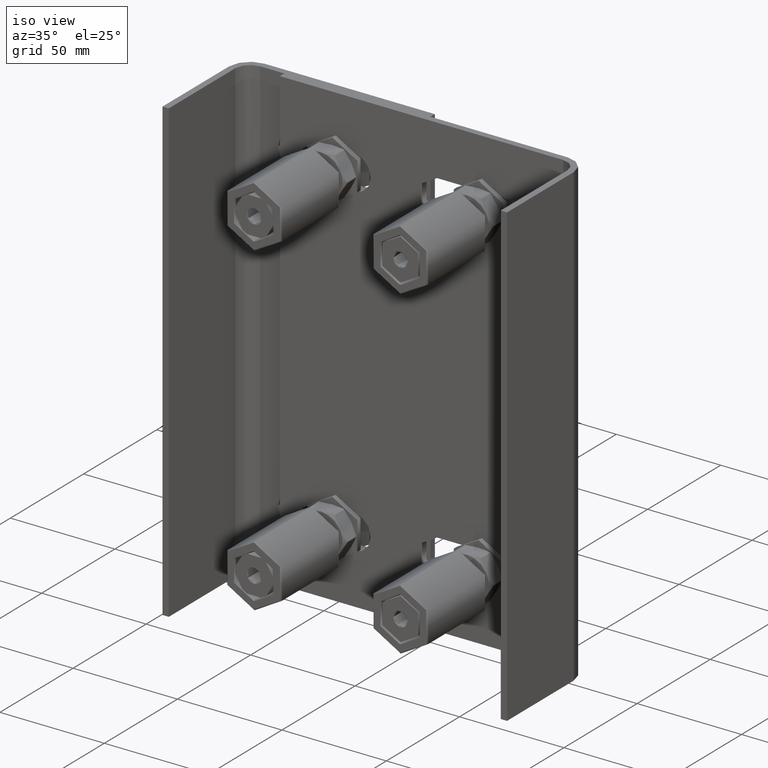
[diagram: clean part render]
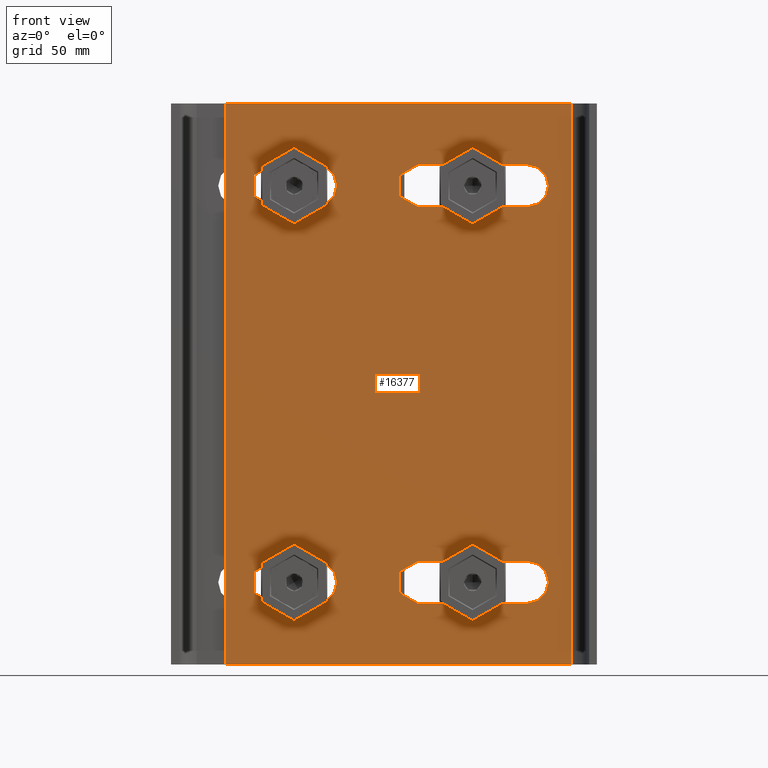
[diagram: tour spotlight — one face highlighted and labeled with its STEP entity id]
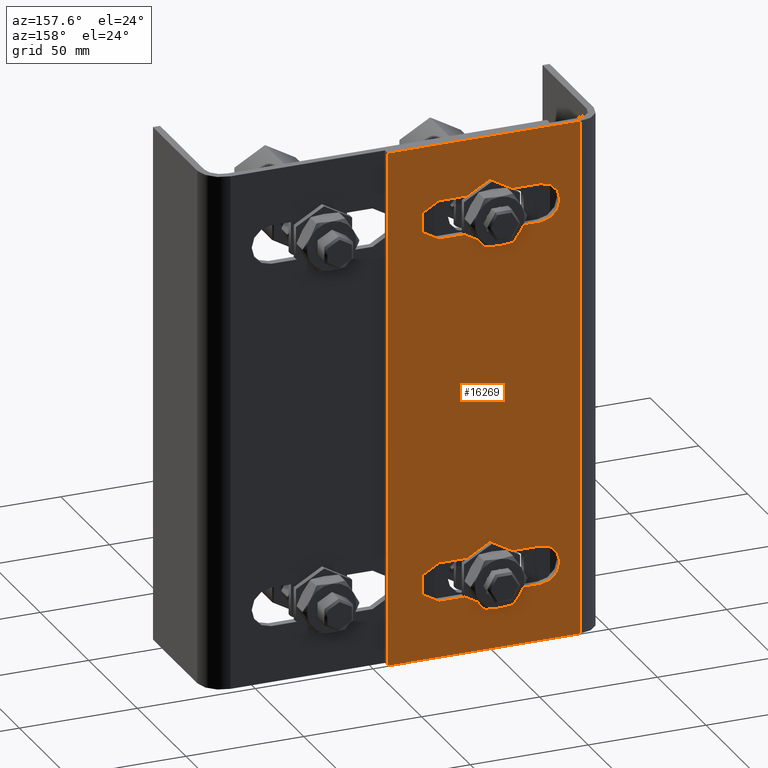
[diagram: tour spotlight — one face highlighted and labeled with its STEP entity id]
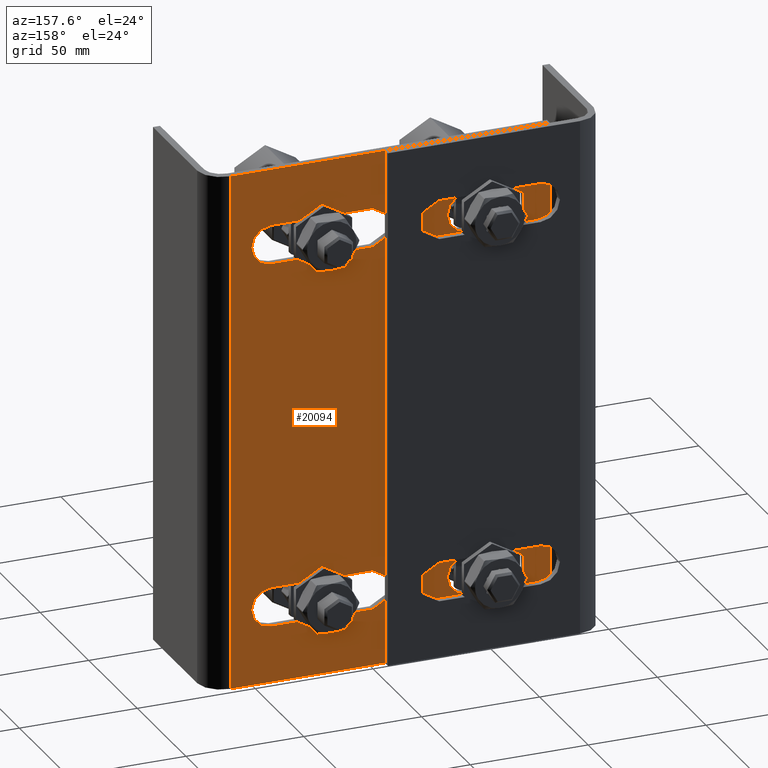
[diagram: tour spotlight — one face highlighted and labeled with its STEP entity id]
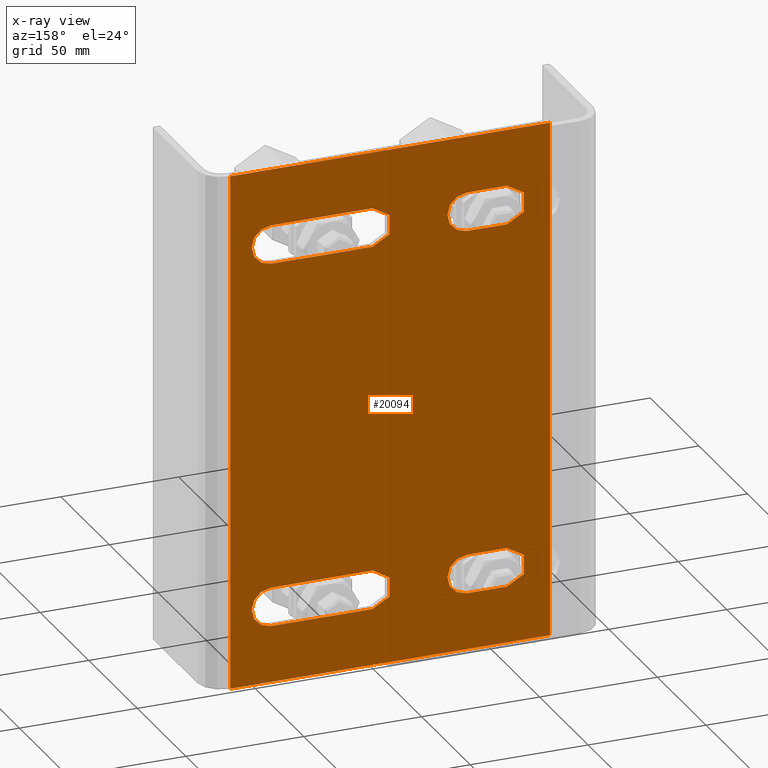
[diagram: x-ray of the same camera — body ghosted, this tour face saturated]
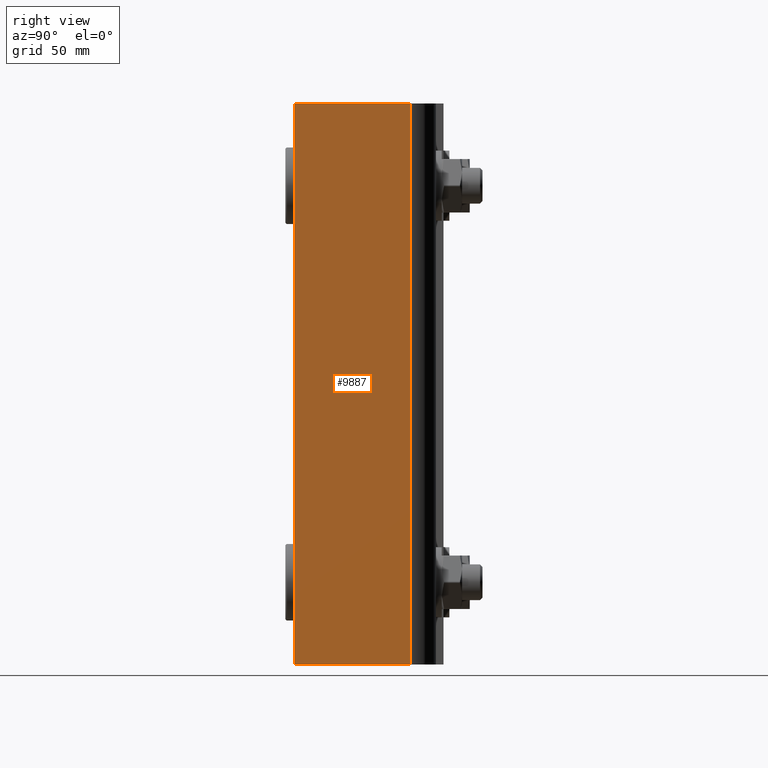
[diagram: tour spotlight — one face highlighted and labeled with its STEP entity id]
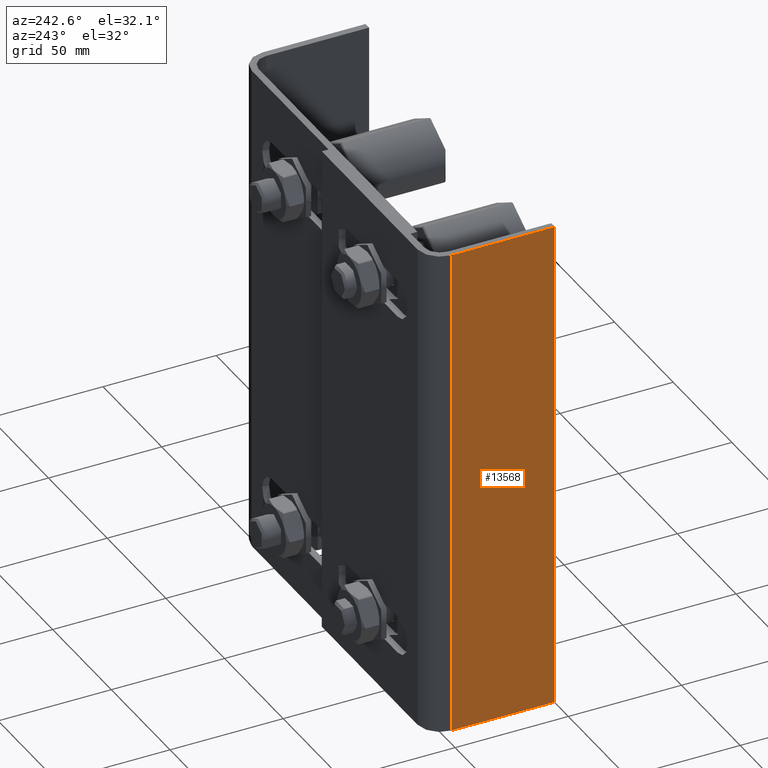
[diagram: tour spotlight — one face highlighted and labeled with its STEP entity id]
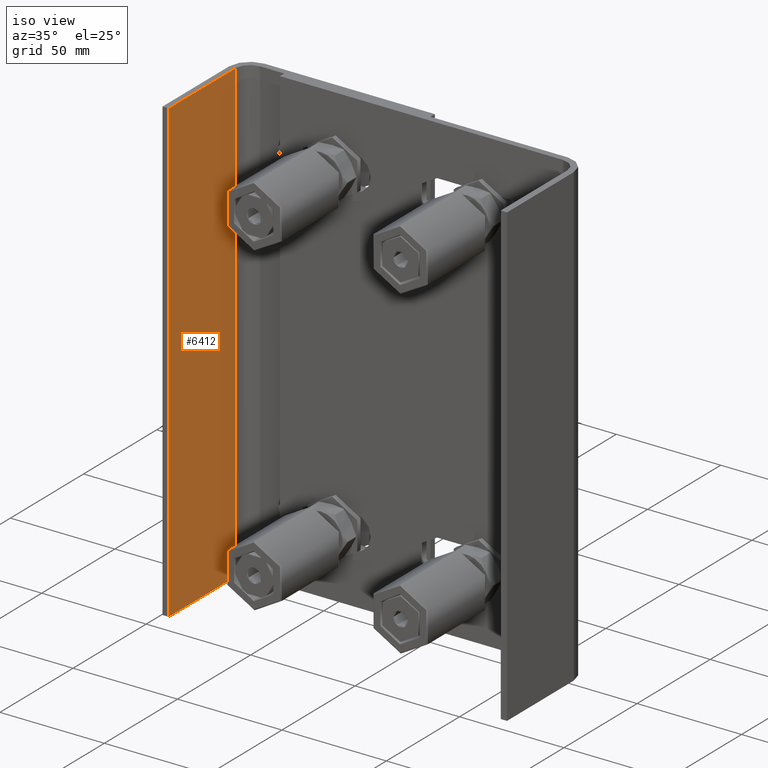
[diagram: tour spotlight — one face highlighted and labeled with its STEP entity id]
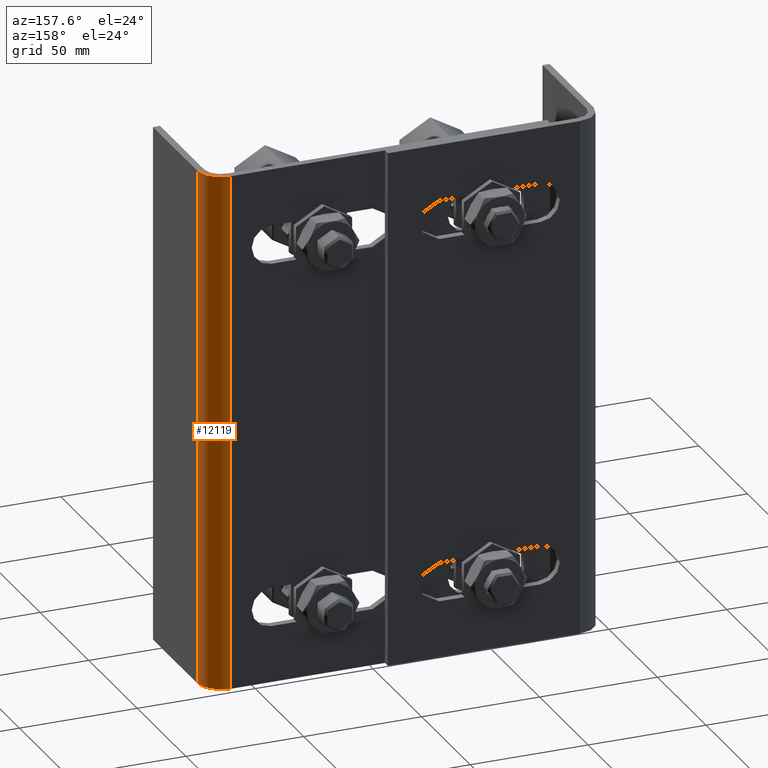
[diagram: tour spotlight — one face highlighted and labeled with its STEP entity id]
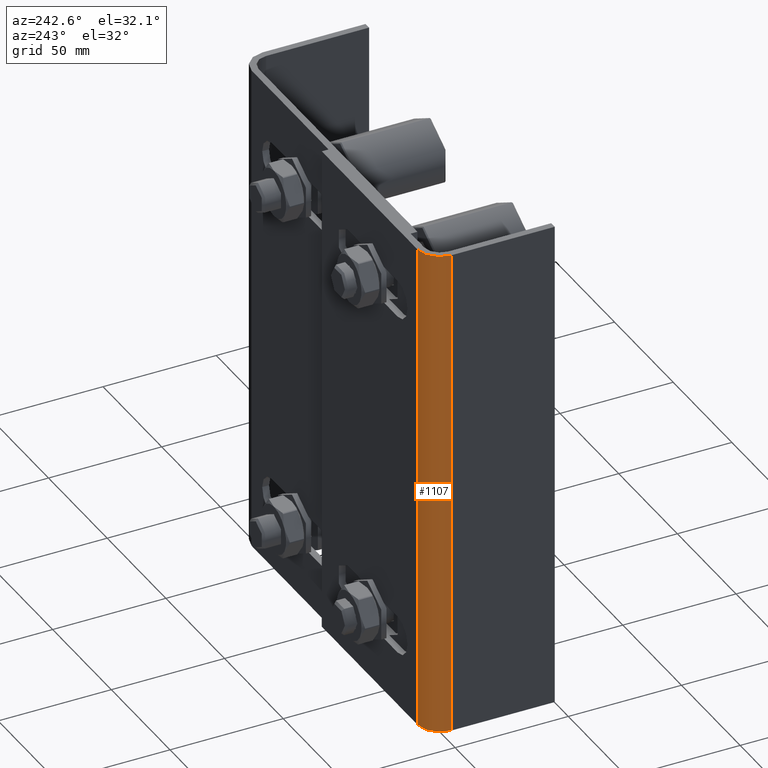
[diagram: tour spotlight — one face highlighted and labeled with its STEP entity id]
A machine part: a face-by-face anatomy tour. The part has 813 B-rep faces; the first image is the clean iso view, then the 8 largest visible faces are spotlighted one at a time (largest first), each with its STEP entity span.

Face 1 — front view, entity #16377. In plain terms, the highlighted planar face has unit normal (-0, 1, 0).
Definition (entity closure, byte-faithful):
#219 = CIRCLE ( 'NONE', #1354, 8.250000000000007105 ) ;
#418 = CARTESIAN_POINT ( 'NONE',  ( 54.49999999999995026, 52.49999999999998579, -86.00000000000000000 ) ) ;
#886 = ORIENTED_EDGE ( 'NONE', *, *, #19212, .T. ) ;
#895 = EDGE_CURVE ( 'NONE', #14763, #9058, #21426, .T. ) ;
#1156 = VERTEX_POINT ( 'NONE', #12333 ) ;
#1193 = AXIS2_PLACEMENT_3D ( 'NONE', #3176, #6504, #11242 ) ;
#1354 = AXIS2_PLACEMENT_3D ( 'NONE', #18972, #12286, #9063 ) ;
#1544 = DIRECTION ( 'NONE',  ( -1.000000000000000000, 0.000000000000000000, 0.000000000000000000 ) ) ;
#1560 = ORIENTED_EDGE ( 'NONE', *, *, #1591, .T. ) ;
#1591 = EDGE_CURVE ( 'NONE', #5216, #17124, #219, .T. ) ;
#1648 = ORIENTED_EDGE ( 'NONE', *, *, #895, .T. ) ;
#1654 = DIRECTION ( 'NONE',  ( -1.000000000000000000, 0.000000000000000000, 0.000000000000000000 ) ) ;
#1767 = CARTESIAN_POINT ( 'NONE',  ( -53.75000000000002842, 52.49999999999999289, 77.74999999999998579 ) ) ;
#2098 = EDGE_CURVE ( 'NONE', #7442, #5113, #4039, .T. ) ;
#2271 = EDGE_CURVE ( 'NONE', #7496, #5716, #19058, .T. ) ;
#2288 = VERTEX_POINT ( 'NONE', #17558 ) ;
#2343 = ORIENTED_EDGE ( 'NONE', *, *, #10168, .T. ) ;
#2568 = EDGE_CURVE ( 'NONE', #18971, #2994, #9220, .T. ) ;
#2606 = CARTESIAN_POINT ( 'NONE',  ( 37.49999999999996447, 52.49999999999999289, -69.49999999999997158 ) ) ;
#2703 = LINE ( 'NONE', #8385, #7892 ) ;
#2727 = CIRCLE ( 'NONE', #6743, 8.250000000000007105 ) ;
#2748 = DIRECTION ( 'NONE',  ( 7.583490605363024354E-17, 1.000000000000000000, 0.000000000000000000 ) ) ;
#2842 = AXIS2_PLACEMENT_3D ( 'NONE', #13162, #21233, #8032 ) ;
#2919 = CARTESIAN_POINT ( 'NONE',  ( -45.49999999999999289, 52.49999999999999289, -86.00000000000000000 ) ) ;
#2962 = DIRECTION ( 'NONE',  ( -1.000000000000000000, 0.000000000000000000, 0.000000000000000000 ) ) ;
#2984 = DIRECTION ( 'NONE',  ( 1.000000000000000000, -5.176450775539412942E-31, 0.000000000000000000 ) ) ;
#2994 = VERTEX_POINT ( 'NONE', #18760 ) ;
#3031 = DIRECTION ( 'NONE',  ( -1.000000000000000000, 0.000000000000000000, 0.000000000000000000 ) ) ;
#3041 = LINE ( 'NONE', #8269, #14682 ) ;
#3166 = CARTESIAN_POINT ( 'NONE',  ( -45.49999999999999289, 52.49999999999999289, -77.74999999999998579 ) ) ;
#3176 = CARTESIAN_POINT ( 'NONE',  ( 54.49999999999997868, 52.49999999999998579, 77.74999999999998579 ) ) ;
#3266 = CARTESIAN_POINT ( 'NONE',  ( 29.24999999999995737, 52.49999999999999289, -77.74999999999998579 ) ) ;
#3455 = VERTEX_POINT ( 'NONE', #5557 ) ;
#3498 = VECTOR ( 'NONE', #18580, 1000.000000000000000 ) ;
#3539 = LINE ( 'NONE', #6872, #10749 ) ;
#3655 = ORIENTED_EDGE ( 'NONE', *, *, #14614, .T. ) ;
#3678 = DIRECTION ( 'NONE',  ( -1.000000000000000000, 5.176450775539412942E-31, 0.000000000000000000 ) ) ;
#3733 = VERTEX_POINT ( 'NONE', #3266 ) ;
#3752 = CARTESIAN_POINT ( 'NONE',  ( -62.75000000000001421, 52.49999999999999289, -110.0000000000000000 ) ) ;
#3792 = AXIS2_PLACEMENT_3D ( 'NONE', #18134, #13139, #14675 ) ;
#3893 = CARTESIAN_POINT ( 'NONE',  ( 72.75000000000000000, 52.49999999999999289, 110.0000000000000000 ) ) ;
#4039 = LINE ( 'NONE', #10531, #14436 ) ;
#4101 = VERTEX_POINT ( 'NONE', #2919 ) ;
#4125 = VERTEX_POINT ( 'NONE', #9342 ) ;
#4488 = DIRECTION ( 'NONE',  ( 1.000000000000000000, 0.000000000000000000, 0.000000000000000000 ) ) ;
#4756 = EDGE_LOOP ( 'NONE', ( #6364, #16395, #13958, #886, #5931 ) ) ;
#4811 = AXIS2_PLACEMENT_3D ( 'NONE', #12986, #14751, #4838 ) ;
#4838 = DIRECTION ( 'NONE',  ( 0.000000000000000000, 0.000000000000000000, 1.000000000000000000 ) ) ;
#4872 = EDGE_CURVE ( 'NONE', #17124, #4125, #21139, .T. ) ;
#4914 = DIRECTION ( 'NONE',  ( 7.583490605363024354E-17, 1.000000000000000000, 0.000000000000000000 ) ) ;
#5080 = FACE_BOUND ( 'NONE', #4756, .T. ) ;
#5102 = CIRCLE ( 'NONE', #15835, 8.250000000000007105 ) ;
#5113 = VERTEX_POINT ( 'NONE', #15082 ) ;
#5186 = ORIENTED_EDGE ( 'NONE', *, *, #4872, .T. ) ;
#5216 = VERTEX_POINT ( 'NONE', #18400 ) ;
#5451 = EDGE_LOOP ( 'NONE', ( #14743, #15281, #7732, #15494 ) ) ;
#5483 = VERTEX_POINT ( 'NONE', #10581 ) ;
#5557 = CARTESIAN_POINT ( 'NONE',  ( -45.50000000000002132, 52.49999999999999289, 86.00000000000000000 ) ) ;
#5630 = CARTESIAN_POINT ( 'NONE',  ( 37.49999999999996447, 52.49999999999999289, -86.00000000000000000 ) ) ;
#5716 = VERTEX_POINT ( 'NONE', #418 ) ;
#5811 = LINE ( 'NONE', #9471, #15359 ) ;
#5850 = DIRECTION ( 'NONE',  ( 1.000000000000000000, -4.081702296416020434E-16, 0.000000000000000000 ) ) ;
#5931 = ORIENTED_EDGE ( 'NONE', *, *, #2568, .T. ) ;
#6310 = CARTESIAN_POINT ( 'NONE',  ( -45.50000000000002132, 52.49999999999999289, 77.74999999999998579 ) ) ;
#6364 = ORIENTED_EDGE ( 'NONE', *, *, #10247, .T. ) ;
#6504 = DIRECTION ( 'NONE',  ( 7.583490605363024354E-17, 1.000000000000000000, 0.000000000000000000 ) ) ;
#6743 = AXIS2_PLACEMENT_3D ( 'NONE', #20597, #20818, #12590 ) ;
#6763 = AXIS2_PLACEMENT_3D ( 'NONE', #8080, #17687, #3031 ) ;
#6791 = CARTESIAN_POINT ( 'NONE',  ( 72.75000000000000000, 52.49999999999999289, -110.0000000000000000 ) ) ;
#6814 = EDGE_LOOP ( 'NONE', ( #9590, #12304, #1560, #5186, #10368 ) ) ;
#6872 = CARTESIAN_POINT ( 'NONE',  ( -45.50000000000002132, 52.49999999999999289, 69.49999999999997158 ) ) ;
#6947 = CARTESIAN_POINT ( 'NONE',  ( -45.49999999999999289, 52.49999999999999289, -69.49999999999997158 ) ) ;
#7100 = LINE ( 'NONE', #3893, #20857 ) ;
#7224 = DIRECTION ( 'NONE',  ( 0.000000000000000000, 0.000000000000000000, 1.000000000000000000 ) ) ;
#7380 = CIRCLE ( 'NONE', #3792, 8.250000000000007105 ) ;
#7442 = VERTEX_POINT ( 'NONE', #3752 ) ;
#7456 = VERTEX_POINT ( 'NONE', #5630 ) ;
#7496 = VERTEX_POINT ( 'NONE', #8310 ) ;
#7533 = EDGE_CURVE ( 'NONE', #9486, #14763, #7563, .T. ) ;
#7563 = CIRCLE ( 'NONE', #20096, 8.250000000000007105 ) ;
#7732 = ORIENTED_EDGE ( 'NONE', *, *, #19581, .F. ) ;
#7892 = VECTOR ( 'NONE', #8323, 1000.000000000000000 ) ;
#8032 = DIRECTION ( 'NONE',  ( 1.000000000000000000, 0.000000000000000000, 0.000000000000000000 ) ) ;
#8080 = CARTESIAN_POINT ( 'NONE',  ( -2.500000000000009770, 52.49999999999999289, 77.74999999999998579 ) ) ;
#8226 = CIRCLE ( 'NONE', #15425, 8.250000000000007105 ) ;
#8269 = CARTESIAN_POINT ( 'NONE',  ( 37.49999999999999289, 52.49999999999999289, 69.49999999999997158 ) ) ;
#8310 = CARTESIAN_POINT ( 'NONE',  ( 54.49999999999995026, 52.49999999999999289, -69.49999999999997158 ) ) ;
#8323 = DIRECTION ( 'NONE',  ( -1.000000000000000000, 4.081702296416020434E-16, 0.000000000000000000 ) ) ;
#8385 = CARTESIAN_POINT ( 'NONE',  ( 37.49999999999996447, 52.49999999999999289, -86.00000000000000000 ) ) ;
#8395 = DIRECTION ( 'NONE',  ( -1.000000000000000000, 5.176450775539412942E-31, -0.000000000000000000 ) ) ;
#8414 = DIRECTION ( 'NONE',  ( 1.000000000000000000, -4.081702296416020434E-16, 0.000000000000000000 ) ) ;
#8459 = VECTOR ( 'NONE', #8414, 1000.000000000000000 ) ;
#8603 = VERTEX_POINT ( 'NONE', #10986 ) ;
#8739 = VECTOR ( 'NONE', #21095, 1000.000000000000000 ) ;
#8746 = EDGE_CURVE ( 'NONE', #10438, #15301, #13150, .T. ) ;
#9058 = VERTEX_POINT ( 'NONE', #19972 ) ;
#9063 = DIRECTION ( 'NONE',  ( 1.000000000000000000, 0.000000000000000000, 0.000000000000000000 ) ) ;
#9220 = CIRCLE ( 'NONE', #6763, 8.250000000000007105 ) ;
#9342 = CARTESIAN_POINT ( 'NONE',  ( -2.500000000000002220, 52.49999999999999289, -69.49999999999997158 ) ) ;
#9442 = CARTESIAN_POINT ( 'NONE',  ( -45.49999999999999289, 52.49999999999999289, -86.00000000000000000 ) ) ;
#9471 = CARTESIAN_POINT ( 'NONE',  ( -45.50000000000002132, 52.49999999999999289, 86.00000000000000000 ) ) ;
#9483 = EDGE_CURVE ( 'NONE', #4101, #5216, #8226, .T. ) ;
#9486 = VERTEX_POINT ( 'NONE', #16450 ) ;
#9590 = ORIENTED_EDGE ( 'NONE', *, *, #13447, .T. ) ;
#9687 = LINE ( 'NONE', #9442, #17430 ) ;
#9776 = DIRECTION ( 'NONE',  ( -1.000000000000000000, 4.081702296416020434E-16, 0.000000000000000000 ) ) ;
#9912 = DIRECTION ( 'NONE',  ( -1.000000000000000000, 0.000000000000000000, 0.000000000000000000 ) ) ;
#10151 = EDGE_CURVE ( 'NONE', #5483, #14896, #3041, .T. ) ;
#10168 = EDGE_CURVE ( 'NONE', #14896, #9486, #5102, .T. ) ;
#10247 = EDGE_CURVE ( 'NONE', #2994, #1156, #3539, .T. ) ;
#10360 = ORIENTED_EDGE ( 'NONE', *, *, #16905, .T. ) ;
#10368 = ORIENTED_EDGE ( 'NONE', *, *, #16305, .T. ) ;
#10438 = VERTEX_POINT ( 'NONE', #15750 ) ;
#10473 = FACE_BOUND ( 'NONE', #18583, .T. ) ;
#10531 = CARTESIAN_POINT ( 'NONE',  ( -62.75000000000001421, 52.49999999999999289, -110.0000000000000000 ) ) ;
#10581 = CARTESIAN_POINT ( 'NONE',  ( 54.49999999999997868, 52.49999999999998579, 69.49999999999997158 ) ) ;
#10656 = CIRCLE ( 'NONE', #12251, 8.250000000000007105 ) ;
#10749 = VECTOR ( 'NONE', #3678, 1000.000000000000000 ) ;
#10829 = ORIENTED_EDGE ( 'NONE', *, *, #16364, .T. ) ;
#10986 = CARTESIAN_POINT ( 'NONE',  ( -2.500000000000009326, 52.49999999999999289, -86.00000000000000000 ) ) ;
#11238 = ORIENTED_EDGE ( 'NONE', *, *, #10151, .T. ) ;
#11242 = DIRECTION ( 'NONE',  ( -1.000000000000000000, 0.000000000000000000, 0.000000000000000000 ) ) ;
#11529 = DIRECTION ( 'NONE',  ( 7.583490605363024354E-17, 1.000000000000000000, 0.000000000000000000 ) ) ;
#12172 = CARTESIAN_POINT ( 'NONE',  ( -45.49999999999999289, 52.49999999999999289, -69.49999999999997158 ) ) ;
#12251 = AXIS2_PLACEMENT_3D ( 'NONE', #14829, #11529, #1654 ) ;
#12286 = DIRECTION ( 'NONE',  ( 7.583490605363024354E-17, 1.000000000000000000, 0.000000000000000000 ) ) ;
#12304 = ORIENTED_EDGE ( 'NONE', *, *, #9483, .T. ) ;
#12333 = CARTESIAN_POINT ( 'NONE',  ( -45.50000000000002132, 52.49999999999999289, 69.49999999999997158 ) ) ;
#12340 = EDGE_CURVE ( 'NONE', #15301, #5113, #7100, .T. ) ;
#12353 = CARTESIAN_POINT ( 'NONE',  ( -2.500000000000015987, 52.49999999999999289, 86.00000000000000000 ) ) ;
#12475 = EDGE_CURVE ( 'NONE', #2288, #7496, #19267, .T. ) ;
#12590 = DIRECTION ( 'NONE',  ( 1.000000000000000000, 0.000000000000000000, 0.000000000000000000 ) ) ;
#12753 = ORIENTED_EDGE ( 'NONE', *, *, #17776, .T. ) ;
#12981 = DIRECTION ( 'NONE',  ( -1.000000000000000000, 5.176450775539412942E-31, 0.000000000000000000 ) ) ;
#12986 = CARTESIAN_POINT ( 'NONE',  ( 72.75000000000000000, 52.49999999999999289, -110.0000000000000000 ) ) ;
#13139 = DIRECTION ( 'NONE',  ( 7.583490605363024354E-17, 1.000000000000000000, 0.000000000000000000 ) ) ;
#13150 = LINE ( 'NONE', #14494, #8739 ) ;
#13162 = CARTESIAN_POINT ( 'NONE',  ( 37.49999999999996447, 52.49999999999999289, -77.74999999999998579 ) ) ;
#13237 = ORIENTED_EDGE ( 'NONE', *, *, #2271, .T. ) ;
#13319 = CARTESIAN_POINT ( 'NONE',  ( 37.49999999999999289, 52.49999999999999289, 86.00000000000000000 ) ) ;
#13447 = EDGE_CURVE ( 'NONE', #8603, #4101, #9687, .T. ) ;
#13958 = ORIENTED_EDGE ( 'NONE', *, *, #20159, .T. ) ;
#14198 = VERTEX_POINT ( 'NONE', #1767 ) ;
#14436 = VECTOR ( 'NONE', #7224, 1000.000000000000000 ) ;
#14494 = CARTESIAN_POINT ( 'NONE',  ( 72.75000000000000000, 52.49999999999999289, -110.0000000000000000 ) ) ;
#14614 = EDGE_CURVE ( 'NONE', #3733, #2288, #19096, .T. ) ;
#14675 = DIRECTION ( 'NONE',  ( 1.000000000000000000, 0.000000000000000000, 0.000000000000000000 ) ) ;
#14682 = VECTOR ( 'NONE', #9776, 1000.000000000000000 ) ;
#14735 = DIRECTION ( 'NONE',  ( 1.000000000000000000, 0.000000000000000000, 0.000000000000000000 ) ) ;
#14743 = ORIENTED_EDGE ( 'NONE', *, *, #12340, .T. ) ;
#14751 = DIRECTION ( 'NONE',  ( -5.176450775539412942E-31, 1.000000000000000000, 0.000000000000000000 ) ) ;
#14763 = VERTEX_POINT ( 'NONE', #16201 ) ;
#14829 = CARTESIAN_POINT ( 'NONE',  ( -45.50000000000002132, 52.49999999999999289, 77.74999999999998579 ) ) ;
#14896 = VERTEX_POINT ( 'NONE', #14986 ) ;
#14935 = FACE_BOUND ( 'NONE', #6814, .T. ) ;
#14986 = CARTESIAN_POINT ( 'NONE',  ( 37.49999999999999289, 52.49999999999999289, 69.49999999999997158 ) ) ;
#14995 = DIRECTION ( 'NONE',  ( 7.583490605363024354E-17, 1.000000000000000000, 0.000000000000000000 ) ) ;
#15082 = CARTESIAN_POINT ( 'NONE',  ( -62.75000000000001421, 52.49999999999999289, 110.0000000000000000 ) ) ;
#15148 = VECTOR ( 'NONE', #5850, 1000.000000000000000 ) ;
#15281 = ORIENTED_EDGE ( 'NONE', *, *, #2098, .F. ) ;
#15301 = VERTEX_POINT ( 'NONE', #16502 ) ;
#15359 = VECTOR ( 'NONE', #2984, 1000.000000000000000 ) ;
#15425 = AXIS2_PLACEMENT_3D ( 'NONE', #3166, #18177, #14735 ) ;
#15478 = DIRECTION ( 'NONE',  ( -1.000000000000000000, 5.176450775539412942E-31, -0.000000000000000000 ) ) ;
#15494 = ORIENTED_EDGE ( 'NONE', *, *, #8746, .T. ) ;
#15592 = EDGE_CURVE ( 'NONE', #1156, #14198, #21170, .T. ) ;
#15631 = LINE ( 'NONE', #6791, #18991 ) ;
#15737 = AXIS2_PLACEMENT_3D ( 'NONE', #17779, #2748, #4488 ) ;
#15750 = CARTESIAN_POINT ( 'NONE',  ( 72.75000000000000000, 52.49999999999999289, -110.0000000000000000 ) ) ;
#15835 = AXIS2_PLACEMENT_3D ( 'NONE', #18093, #14995, #9912 ) ;
#16201 = CARTESIAN_POINT ( 'NONE',  ( 37.49999999999999289, 52.49999999999999289, 86.00000000000000000 ) ) ;
#16305 = EDGE_CURVE ( 'NONE', #4125, #8603, #7380, .T. ) ;
#16364 = EDGE_CURVE ( 'NONE', #9058, #5483, #18021, .T. ) ;
#16377 = ADVANCED_FACE ( 'NONE', ( #14935, #10473, #5080, #17743, #19300 ), #19818, .F. ) ;
#16395 = ORIENTED_EDGE ( 'NONE', *, *, #15592, .T. ) ;
#16450 = CARTESIAN_POINT ( 'NONE',  ( 29.24999999999998579, 52.49999999999999289, 77.74999999999998579 ) ) ;
#16502 = CARTESIAN_POINT ( 'NONE',  ( 72.75000000000000000, 52.49999999999999289, 110.0000000000000000 ) ) ;
#16905 = EDGE_CURVE ( 'NONE', #7456, #3733, #2727, .T. ) ;
#17124 = VERTEX_POINT ( 'NONE', #6947 ) ;
#17430 = VECTOR ( 'NONE', #12981, 1000.000000000000000 ) ;
#17558 = CARTESIAN_POINT ( 'NONE',  ( 37.49999999999996447, 52.49999999999999289, -69.49999999999997158 ) ) ;
#17687 = DIRECTION ( 'NONE',  ( 7.583490605363024354E-17, 1.000000000000000000, 0.000000000000000000 ) ) ;
#17743 = FACE_BOUND ( 'NONE', #19681, .T. ) ;
#17776 = EDGE_CURVE ( 'NONE', #5716, #7456, #2703, .T. ) ;
#17779 = CARTESIAN_POINT ( 'NONE',  ( 54.49999999999995026, 52.49999999999998579, -77.74999999999998579 ) ) ;
#17788 = DIRECTION ( 'NONE',  ( 7.583490605363024354E-17, 1.000000000000000000, 0.000000000000000000 ) ) ;
#18021 = CIRCLE ( 'NONE', #1193, 8.250000000000007105 ) ;
#18093 = CARTESIAN_POINT ( 'NONE',  ( 37.49999999999999289, 52.49999999999999289, 77.74999999999998579 ) ) ;
#18134 = CARTESIAN_POINT ( 'NONE',  ( -2.500000000000007994, 52.49999999999999289, -77.74999999999998579 ) ) ;
#18177 = DIRECTION ( 'NONE',  ( 7.583490605363024354E-17, 1.000000000000000000, 0.000000000000000000 ) ) ;
#18400 = CARTESIAN_POINT ( 'NONE',  ( -53.75000000000000000, 52.49999999999999289, -77.74999999999998579 ) ) ;
#18580 = DIRECTION ( 'NONE',  ( 1.000000000000000000, -5.176450775539412942E-31, 0.000000000000000000 ) ) ;
#18583 = EDGE_LOOP ( 'NONE', ( #11238, #2343, #20789, #1648, #10829 ) ) ;
#18760 = CARTESIAN_POINT ( 'NONE',  ( -2.500000000000009770, 52.49999999999999289, 69.49999999999997158 ) ) ;
#18971 = VERTEX_POINT ( 'NONE', #12353 ) ;
#18972 = CARTESIAN_POINT ( 'NONE',  ( -45.49999999999999289, 52.49999999999999289, -77.74999999999998579 ) ) ;
#18991 = VECTOR ( 'NONE', #8395, 1000.000000000000000 ) ;
#19058 = CIRCLE ( 'NONE', #15737, 8.250000000000007105 ) ;
#19096 = CIRCLE ( 'NONE', #2842, 8.250000000000007105 ) ;
#19212 = EDGE_CURVE ( 'NONE', #3455, #18971, #5811, .T. ) ;
#19267 = LINE ( 'NONE', #2606, #15148 ) ;
#19300 = FACE_OUTER_BOUND ( 'NONE', #5451, .T. ) ;
#19581 = EDGE_CURVE ( 'NONE', #10438, #7442, #15631, .T. ) ;
#19681 = EDGE_LOOP ( 'NONE', ( #12753, #10360, #3655, #21089, #13237 ) ) ;
#19818 = PLANE ( 'NONE',  #4811 ) ;
#19972 = CARTESIAN_POINT ( 'NONE',  ( 54.49999999999997868, 52.49999999999999289, 86.00000000000000000 ) ) ;
#20096 = AXIS2_PLACEMENT_3D ( 'NONE', #21433, #4914, #2962 ) ;
#20159 = EDGE_CURVE ( 'NONE', #14198, #3455, #10656, .T. ) ;
#20457 = AXIS2_PLACEMENT_3D ( 'NONE', #6310, #17788, #1544 ) ;
#20597 = CARTESIAN_POINT ( 'NONE',  ( 37.49999999999996447, 52.49999999999999289, -77.74999999999998579 ) ) ;
#20789 = ORIENTED_EDGE ( 'NONE', *, *, #7533, .T. ) ;
#20818 = DIRECTION ( 'NONE',  ( 7.583490605363024354E-17, 1.000000000000000000, 0.000000000000000000 ) ) ;
#20857 = VECTOR ( 'NONE', #15478, 1000.000000000000000 ) ;
#21089 = ORIENTED_EDGE ( 'NONE', *, *, #12475, .T. ) ;
#21095 = DIRECTION ( 'NONE',  ( 0.000000000000000000, 0.000000000000000000, 1.000000000000000000 ) ) ;
#21139 = LINE ( 'NONE', #12172, #3498 ) ;
#21170 = CIRCLE ( 'NONE', #20457, 8.250000000000007105 ) ;
#21233 = DIRECTION ( 'NONE',  ( 7.583490605363024354E-17, 1.000000000000000000, 0.000000000000000000 ) ) ;
#21426 = LINE ( 'NONE', #13319, #8459 ) ;
#21433 = CARTESIAN_POINT ( 'NONE',  ( 37.49999999999999289, 52.49999999999999289, 77.74999999999998579 ) ) ;

Face 2 — auxiliary view, entity #16269. In plain terms, the highlighted planar face has unit normal (0, 1, 0).
Definition (entity closure, byte-faithful):
#188 = VECTOR ( 'NONE', #14030, 1000.000000000000000 ) ;
#268 = VERTEX_POINT ( 'NONE', #21130 ) ;
#488 = DIRECTION ( 'NONE',  ( 1.000000000000000000, 0.000000000000000000, 0.000000000000000000 ) ) ;
#511 = AXIS2_PLACEMENT_3D ( 'NONE', #9856, #5361, #6687 ) ;
#557 = DIRECTION ( 'NONE',  ( 1.000000000000000000, 0.000000000000000000, 0.000000000000000000 ) ) ;
#561 = VERTEX_POINT ( 'NONE', #18329 ) ;
#948 = CARTESIAN_POINT ( 'NONE',  ( -19.00000000000002487, 55.49999999999999289, 86.00000000000000000 ) ) ;
#990 = CARTESIAN_POINT ( 'NONE',  ( -19.00000000000002487, 55.49999999999999289, -69.49999999999997158 ) ) ;
#1019 = EDGE_CURVE ( 'NONE', #561, #14657, #17765, .T. ) ;
#1148 = EDGE_CURVE ( 'NONE', #8601, #4257, #13374, .T. ) ;
#1325 = VERTEX_POINT ( 'NONE', #4429 ) ;
#1609 = CARTESIAN_POINT ( 'NONE',  ( -19.00000000000002487, 55.49999999999999289, 69.49999999999997158 ) ) ;
#2223 = FACE_BOUND ( 'NONE', #2555, .T. ) ;
#2466 = CARTESIAN_POINT ( 'NONE',  ( 45.75000000000000000, 55.49999999999998579, -110.0000000000000000 ) ) ;
#2555 = EDGE_LOOP ( 'NONE', ( #3395, #3607, #19931, #3930, #5912 ) ) ;
#2687 = CARTESIAN_POINT ( 'NONE',  ( 45.75000000000000000, 55.49999999999998579, -110.0000000000000000 ) ) ;
#2897 = ORIENTED_EDGE ( 'NONE', *, *, #10782, .F. ) ;
#3224 = CIRCLE ( 'NONE', #18882, 8.250000000000007105 ) ;
#3280 = FACE_BOUND ( 'NONE', #10079, .T. ) ;
#3395 = ORIENTED_EDGE ( 'NONE', *, *, #1019, .F. ) ;
#3409 = CARTESIAN_POINT ( 'NONE',  ( -19.00000000000002487, 55.49999999999999289, 69.49999999999997158 ) ) ;
#3410 = AXIS2_PLACEMENT_3D ( 'NONE', #5983, #6212, #9230 ) ;
#3446 = DIRECTION ( 'NONE',  ( 7.583490605363092147E-17, 1.000000000000000000, 0.000000000000000000 ) ) ;
#3607 = ORIENTED_EDGE ( 'NONE', *, *, #18190, .F. ) ;
#3692 = CIRCLE ( 'NONE', #511, 8.250000000000007105 ) ;
#3713 = VECTOR ( 'NONE', #9810, 1000.000000000000000 ) ;
#3898 = CARTESIAN_POINT ( 'NONE',  ( -19.00000000000002487, 55.49999999999999289, -77.74999999999998579 ) ) ;
#3930 = ORIENTED_EDGE ( 'NONE', *, *, #13194, .F. ) ;
#4257 = VERTEX_POINT ( 'NONE', #19678 ) ;
#4429 = CARTESIAN_POINT ( 'NONE',  ( -27.25000000000003197, 55.49999999999999289, 77.74999999999998579 ) ) ;
#4645 = CARTESIAN_POINT ( 'NONE',  ( -27.25000000000003197, 55.49999999999999289, -77.74999999999998579 ) ) ;
#4835 = CARTESIAN_POINT ( 'NONE',  ( 45.75000000000000000, 55.49999999999998579, 110.0000000000000000 ) ) ;
#5361 = DIRECTION ( 'NONE',  ( 7.583490605363092147E-17, 1.000000000000000000, 0.000000000000000000 ) ) ;
#5457 = EDGE_CURVE ( 'NONE', #17909, #19692, #14375, .T. ) ;
#5830 = EDGE_CURVE ( 'NONE', #12467, #8650, #21097, .T. ) ;
#5912 = ORIENTED_EDGE ( 'NONE', *, *, #20630, .F. ) ;
#5983 = CARTESIAN_POINT ( 'NONE',  ( 45.75000000000000000, 55.49999999999998579, -110.0000000000000000 ) ) ;
#6212 = DIRECTION ( 'NONE',  ( 7.583490605363092147E-17, 1.000000000000000000, -0.000000000000000000 ) ) ;
#6384 = CIRCLE ( 'NONE', #15150, 8.250000000000007105 ) ;
#6443 = LINE ( 'NONE', #15570, #10540 ) ;
#6687 = DIRECTION ( 'NONE',  ( -1.000000000000000000, 0.000000000000000000, 0.000000000000000000 ) ) ;
#7077 = CIRCLE ( 'NONE', #11576, 8.250000000000007105 ) ;
#7774 = VERTEX_POINT ( 'NONE', #10057 ) ;
#7869 = LINE ( 'NONE', #20764, #9943 ) ;
#7988 = ORIENTED_EDGE ( 'NONE', *, *, #20879, .F. ) ;
#8140 = VECTOR ( 'NONE', #13785, 1000.000000000000000 ) ;
#8373 = CARTESIAN_POINT ( 'NONE',  ( 24.00000000000000711, 55.49999999999999289, 77.74999999999998579 ) ) ;
#8601 = VERTEX_POINT ( 'NONE', #2687 ) ;
#8650 = VERTEX_POINT ( 'NONE', #10834 ) ;
#9060 = ORIENTED_EDGE ( 'NONE', *, *, #12752, .F. ) ;
#9230 = DIRECTION ( 'NONE',  ( -1.000000000000000000, 7.583490605363092147E-17, 0.000000000000000000 ) ) ;
#9293 = VERTEX_POINT ( 'NONE', #990 ) ;
#9506 = EDGE_LOOP ( 'NONE', ( #20440, #11852, #17618, #11194 ) ) ;
#9810 = DIRECTION ( 'NONE',  ( -1.000000000000000000, 7.583490605363090914E-17, 0.000000000000000000 ) ) ;
#9856 = CARTESIAN_POINT ( 'NONE',  ( -19.00000000000002487, 55.49999999999999289, 77.74999999999998579 ) ) ;
#9899 = DIRECTION ( 'NONE',  ( 7.583490605363092147E-17, 1.000000000000000000, 0.000000000000000000 ) ) ;
#9943 = VECTOR ( 'NONE', #12686, 1000.000000000000000 ) ;
#10057 = CARTESIAN_POINT ( 'NONE',  ( 45.75000000000000000, 55.49999999999998579, 110.0000000000000000 ) ) ;
#10079 = EDGE_LOOP ( 'NONE', ( #9060, #14082, #2897, #18864, #7988 ) ) ;
#10175 = VECTOR ( 'NONE', #20318, 1000.000000000000000 ) ;
#10351 = DIRECTION ( 'NONE',  ( 0.000000000000000000, 0.000000000000000000, 1.000000000000000000 ) ) ;
#10540 = VECTOR ( 'NONE', #10351, 1000.000000000000000 ) ;
#10645 = CARTESIAN_POINT ( 'NONE',  ( -19.00000000000002487, 55.49999999999999289, -69.49999999999997158 ) ) ;
#10773 = CARTESIAN_POINT ( 'NONE',  ( -19.00000000000002487, 55.49999999999999289, -77.74999999999998579 ) ) ;
#10782 = EDGE_CURVE ( 'NONE', #8650, #268, #6384, .T. ) ;
#10834 = CARTESIAN_POINT ( 'NONE',  ( 24.00000000000000711, 55.49999999999999289, 86.00000000000000000 ) ) ;
#11194 = ORIENTED_EDGE ( 'NONE', *, *, #18361, .T. ) ;
#11482 = DIRECTION ( 'NONE',  ( -1.000000000000000000, 0.000000000000000000, 0.000000000000000000 ) ) ;
#11576 = AXIS2_PLACEMENT_3D ( 'NONE', #10773, #19259, #12438 ) ;
#11852 = ORIENTED_EDGE ( 'NONE', *, *, #15011, .F. ) ;
#12203 = LINE ( 'NONE', #4835, #3713 ) ;
#12438 = DIRECTION ( 'NONE',  ( 1.000000000000000000, 0.000000000000000000, 0.000000000000000000 ) ) ;
#12467 = VERTEX_POINT ( 'NONE', #948 ) ;
#12497 = LINE ( 'NONE', #10645, #8140 ) ;
#12523 = AXIS2_PLACEMENT_3D ( 'NONE', #3898, #15690, #15414 ) ;
#12686 = DIRECTION ( 'NONE',  ( 0.000000000000000000, 0.000000000000000000, 1.000000000000000000 ) ) ;
#12752 = EDGE_CURVE ( 'NONE', #17727, #1325, #3224, .T. ) ;
#12839 = PLANE ( 'NONE',  #3410 ) ;
#13160 = CARTESIAN_POINT ( 'NONE',  ( -19.00000000000002487, 55.49999999999999289, 77.74999999999998579 ) ) ;
#13194 = EDGE_CURVE ( 'NONE', #9293, #17909, #12497, .T. ) ;
#13272 = AXIS2_PLACEMENT_3D ( 'NONE', #13856, #18988, #488 ) ;
#13374 = LINE ( 'NONE', #2466, #188 ) ;
#13785 = DIRECTION ( 'NONE',  ( 1.000000000000000000, 0.000000000000000000, 0.000000000000000000 ) ) ;
#13832 = VERTEX_POINT ( 'NONE', #20737 ) ;
#13856 = CARTESIAN_POINT ( 'NONE',  ( 24.00000000000000711, 55.49999999999999289, -77.74999999999998579 ) ) ;
#13873 = LINE ( 'NONE', #3409, #15440 ) ;
#14030 = DIRECTION ( 'NONE',  ( -1.000000000000000000, 7.583490605363090914E-17, 0.000000000000000000 ) ) ;
#14082 = ORIENTED_EDGE ( 'NONE', *, *, #15809, .F. ) ;
#14375 = CIRCLE ( 'NONE', #13272, 8.250000000000007105 ) ;
#14657 = VERTEX_POINT ( 'NONE', #4645 ) ;
#14990 = DIRECTION ( 'NONE',  ( -1.000000000000000000, -0.000000000000000000, -0.000000000000000000 ) ) ;
#15011 = EDGE_CURVE ( 'NONE', #8601, #7774, #6443, .T. ) ;
#15150 = AXIS2_PLACEMENT_3D ( 'NONE', #8373, #3446, #19823 ) ;
#15414 = DIRECTION ( 'NONE',  ( 1.000000000000000000, 0.000000000000000000, 0.000000000000000000 ) ) ;
#15440 = VECTOR ( 'NONE', #14990, 1000.000000000000000 ) ;
#15570 = CARTESIAN_POINT ( 'NONE',  ( 45.75000000000000000, 55.49999999999998579, -110.0000000000000000 ) ) ;
#15690 = DIRECTION ( 'NONE',  ( 7.583490605363092147E-17, 1.000000000000000000, -0.000000000000000000 ) ) ;
#15809 = EDGE_CURVE ( 'NONE', #268, #17727, #13873, .T. ) ;
#16269 = ADVANCED_FACE ( 'NONE', ( #2223, #3280, #20359 ), #12839, .T. ) ;
#16954 = CARTESIAN_POINT ( 'NONE',  ( 24.00000000000000711, 55.49999999999999289, -69.49999999999997158 ) ) ;
#17618 = ORIENTED_EDGE ( 'NONE', *, *, #1148, .T. ) ;
#17727 = VERTEX_POINT ( 'NONE', #1609 ) ;
#17765 = CIRCLE ( 'NONE', #12523, 8.250000000000007105 ) ;
#17909 = VERTEX_POINT ( 'NONE', #16954 ) ;
#18190 = EDGE_CURVE ( 'NONE', #19692, #561, #18986, .T. ) ;
#18329 = CARTESIAN_POINT ( 'NONE',  ( -19.00000000000002487, 55.49999999999999289, -86.00000000000000000 ) ) ;
#18361 = EDGE_CURVE ( 'NONE', #4257, #13832, #7869, .T. ) ;
#18568 = CARTESIAN_POINT ( 'NONE',  ( 24.00000000000000711, 55.49999999999999289, -86.00000000000000000 ) ) ;
#18864 = ORIENTED_EDGE ( 'NONE', *, *, #5830, .F. ) ;
#18882 = AXIS2_PLACEMENT_3D ( 'NONE', #13160, #9899, #11482 ) ;
#18986 = LINE ( 'NONE', #20614, #10175 ) ;
#18988 = DIRECTION ( 'NONE',  ( 7.583490605363092147E-17, 1.000000000000000000, -0.000000000000000000 ) ) ;
#19259 = DIRECTION ( 'NONE',  ( 7.583490605363092147E-17, 1.000000000000000000, -0.000000000000000000 ) ) ;
#19678 = CARTESIAN_POINT ( 'NONE',  ( -35.74999999999998579, 55.49999999999999289, -110.0000000000000000 ) ) ;
#19692 = VERTEX_POINT ( 'NONE', #18568 ) ;
#19823 = DIRECTION ( 'NONE',  ( -1.000000000000000000, 0.000000000000000000, 0.000000000000000000 ) ) ;
#19931 = ORIENTED_EDGE ( 'NONE', *, *, #5457, .F. ) ;
#20262 = EDGE_CURVE ( 'NONE', #7774, #13832, #12203, .T. ) ;
#20318 = DIRECTION ( 'NONE',  ( -1.000000000000000000, -0.000000000000000000, -0.000000000000000000 ) ) ;
#20359 = FACE_OUTER_BOUND ( 'NONE', #9506, .T. ) ;
#20440 = ORIENTED_EDGE ( 'NONE', *, *, #20262, .F. ) ;
#20465 = CARTESIAN_POINT ( 'NONE',  ( -19.00000000000002487, 55.49999999999999289, 86.00000000000000000 ) ) ;
#20559 = VECTOR ( 'NONE', #557, 1000.000000000000000 ) ;
#20614 = CARTESIAN_POINT ( 'NONE',  ( -19.00000000000002487, 55.49999999999999289, -86.00000000000000000 ) ) ;
#20630 = EDGE_CURVE ( 'NONE', #14657, #9293, #7077, .T. ) ;
#20737 = CARTESIAN_POINT ( 'NONE',  ( -35.74999999999998579, 55.49999999999999289, 110.0000000000000000 ) ) ;
#20764 = CARTESIAN_POINT ( 'NONE',  ( -35.74999999999998579, 55.49999999999999289, -110.0000000000000000 ) ) ;
#20879 = EDGE_CURVE ( 'NONE', #1325, #12467, #3692, .T. ) ;
#21097 = LINE ( 'NONE', #20465, #20559 ) ;
#21130 = CARTESIAN_POINT ( 'NONE',  ( 24.00000000000000711, 55.49999999999999289, 69.49999999999997158 ) ) ;

Face 3 — auxiliary view, entity #20094. An x-ray twin of the same camera follows (body ghosted, this face saturated) — the face is partly hidden behind the body. In plain terms, the highlighted planar face has unit normal (-0, 1, 0).
Definition (entity closure, byte-faithful):
#54 = VERTEX_POINT ( 'NONE', #9298 ) ;
#426 = EDGE_CURVE ( 'NONE', #5152, #6025, #17123, .T. ) ;
#465 = CIRCLE ( 'NONE', #4135, 8.250000000000007105 ) ;
#551 = DIRECTION ( 'NONE',  ( 7.583490605363024354E-17, 1.000000000000000000, 0.000000000000000000 ) ) ;
#591 = VECTOR ( 'NONE', #18887, 1000.000000000000000 ) ;
#616 = EDGE_CURVE ( 'NONE', #1779, #13921, #17227, .T. ) ;
#654 = CIRCLE ( 'NONE', #1856, 8.250000000000007105 ) ;
#687 = CARTESIAN_POINT ( 'NONE',  ( -45.50000000000002132, 55.49999999999999289, 77.74999999999998579 ) ) ;
#779 = EDGE_LOOP ( 'NONE', ( #15520, #16292, #15630, #9913 ) ) ;
#904 = AXIS2_PLACEMENT_3D ( 'NONE', #6544, #3626, #19716 ) ;
#966 = DIRECTION ( 'NONE',  ( -1.000000000000000000, 0.000000000000000000, 0.000000000000000000 ) ) ;
#1099 = DIRECTION ( 'NONE',  ( 0.000000000000000000, 0.000000000000000000, 1.000000000000000000 ) ) ;
#1184 = EDGE_LOOP ( 'NONE', ( #13432, #18925, #17993, #7211, #5301 ) ) ;
#1239 = CARTESIAN_POINT ( 'NONE',  ( -62.75000000000001421, 55.49999999999999289, -110.0000000000000000 ) ) ;
#1296 = VERTEX_POINT ( 'NONE', #17570 ) ;
#1359 = AXIS2_PLACEMENT_3D ( 'NONE', #18498, #10229, #8456 ) ;
#1402 = CIRCLE ( 'NONE', #17864, 8.250000000000007105 ) ;
#1431 = CARTESIAN_POINT ( 'NONE',  ( 37.49999999999999289, 55.49999999999999289, 69.49999999999997158 ) ) ;
#1613 = DIRECTION ( 'NONE',  ( -1.000000000000000000, 0.000000000000000000, 0.000000000000000000 ) ) ;
#1708 = LINE ( 'NONE', #5356, #14386 ) ;
#1779 = VERTEX_POINT ( 'NONE', #15868 ) ;
#1855 = CARTESIAN_POINT ( 'NONE',  ( -45.49999999999999289, 55.49999999999999289, -86.00000000000000000 ) ) ;
#1856 = AXIS2_PLACEMENT_3D ( 'NONE', #687, #7256, #10493 ) ;
#2372 = EDGE_CURVE ( 'NONE', #54, #18903, #20650, .T. ) ;
#2417 = LINE ( 'NONE', #1855, #5517 ) ;
#2507 = EDGE_CURVE ( 'NONE', #20128, #6497, #16734, .T. ) ;
#2512 = ORIENTED_EDGE ( 'NONE', *, *, #13531, .F. ) ;
#2596 = AXIS2_PLACEMENT_3D ( 'NONE', #18936, #5768, #19151 ) ;
#2656 = VERTEX_POINT ( 'NONE', #16533 ) ;
#2766 = CARTESIAN_POINT ( 'NONE',  ( 37.49999999999999289, 55.49999999999999289, 77.74999999999998579 ) ) ;
#2806 = CARTESIAN_POINT ( 'NONE',  ( -53.75000000000002842, 55.49999999999999289, 77.74999999999998579 ) ) ;
#2951 = DIRECTION ( 'NONE',  ( -5.176450775539412942E-31, 1.000000000000000000, 0.000000000000000000 ) ) ;
#3030 = PLANE ( 'NONE',  #19362 ) ;
#3236 = LINE ( 'NONE', #16618, #5287 ) ;
#3326 = DIRECTION ( 'NONE',  ( 1.000000000000000000, -4.081702296416020434E-16, 0.000000000000000000 ) ) ;
#3330 = CARTESIAN_POINT ( 'NONE',  ( 72.75000000000000000, 55.49999999999999289, -110.0000000000000000 ) ) ;
#3460 = CARTESIAN_POINT ( 'NONE',  ( 54.49999999999997868, 55.49999999999998579, 69.49999999999997158 ) ) ;
#3476 = LINE ( 'NONE', #3330, #7080 ) ;
#3597 = DIRECTION ( 'NONE',  ( 1.000000000000000000, 0.000000000000000000, 0.000000000000000000 ) ) ;
#3617 = EDGE_CURVE ( 'NONE', #11596, #18912, #7126, .T. ) ;
#3626 = DIRECTION ( 'NONE',  ( 7.583490605363024354E-17, 1.000000000000000000, 0.000000000000000000 ) ) ;
#3849 = DIRECTION ( 'NONE',  ( 1.000000000000000000, -5.176450775539412942E-31, 0.000000000000000000 ) ) ;
#3967 = FACE_BOUND ( 'NONE', #14784, .T. ) ;
#4135 = AXIS2_PLACEMENT_3D ( 'NONE', #15106, #11673, #19975 ) ;
#4287 = VECTOR ( 'NONE', #1099, 1000.000000000000000 ) ;
#4405 = ORIENTED_EDGE ( 'NONE', *, *, #7953, .F. ) ;
#4527 = VECTOR ( 'NONE', #14599, 1000.000000000000000 ) ;
#4834 = CARTESIAN_POINT ( 'NONE',  ( -45.50000000000002132, 55.49999999999999289, 69.49999999999997158 ) ) ;
#4899 = EDGE_CURVE ( 'NONE', #1296, #11726, #15659, .T. ) ;
#5152 = VERTEX_POINT ( 'NONE', #9871 ) ;
#5287 = VECTOR ( 'NONE', #3326, 1000.000000000000000 ) ;
#5301 = ORIENTED_EDGE ( 'NONE', *, *, #2507, .F. ) ;
#5356 = CARTESIAN_POINT ( 'NONE',  ( 37.49999999999999289, 55.49999999999999289, 86.00000000000000000 ) ) ;
#5390 = VERTEX_POINT ( 'NONE', #18497 ) ;
#5512 = LINE ( 'NONE', #14720, #13798 ) ;
#5517 = VECTOR ( 'NONE', #8154, 1000.000000000000000 ) ;
#5768 = DIRECTION ( 'NONE',  ( 7.583490605363024354E-17, 1.000000000000000000, 0.000000000000000000 ) ) ;
#6025 = VERTEX_POINT ( 'NONE', #21195 ) ;
#6171 = CARTESIAN_POINT ( 'NONE',  ( -2.500000000000009770, 55.49999999999999289, 86.00000000000000000 ) ) ;
#6223 = EDGE_LOOP ( 'NONE', ( #16031, #11177, #4405, #6243, #14213 ) ) ;
#6243 = ORIENTED_EDGE ( 'NONE', *, *, #616, .F. ) ;
#6392 = CARTESIAN_POINT ( 'NONE',  ( -45.49999999999999289, 55.49999999999999289, -77.74999999999998579 ) ) ;
#6414 = VERTEX_POINT ( 'NONE', #6825 ) ;
#6429 = CARTESIAN_POINT ( 'NONE',  ( 29.24999999999995737, 55.49999999999999289, -77.74999999999998579 ) ) ;
#6497 = VERTEX_POINT ( 'NONE', #11448 ) ;
#6544 = CARTESIAN_POINT ( 'NONE',  ( 54.49999999999997868, 55.49999999999998579, 77.74999999999998579 ) ) ;
#6567 = VERTEX_POINT ( 'NONE', #13776 ) ;
#6574 = CARTESIAN_POINT ( 'NONE',  ( 54.49999999999995026, 55.49999999999998579, -69.49999999999997158 ) ) ;
#6691 = CIRCLE ( 'NONE', #15935, 8.250000000000007105 ) ;
#6825 = CARTESIAN_POINT ( 'NONE',  ( 37.49999999999996447, 55.49999999999999289, -86.00000000000000000 ) ) ;
#6856 = CARTESIAN_POINT ( 'NONE',  ( -45.49999999999999289, 55.49999999999999289, -86.00000000000000000 ) ) ;
#6931 = EDGE_CURVE ( 'NONE', #19951, #18912, #19512, .T. ) ;
#7080 = VECTOR ( 'NONE', #8029, 1000.000000000000000 ) ;
#7126 = LINE ( 'NONE', #1239, #4287 ) ;
#7211 = ORIENTED_EDGE ( 'NONE', *, *, #17747, .F. ) ;
#7256 = DIRECTION ( 'NONE',  ( 7.583490605363024354E-17, 1.000000000000000000, 0.000000000000000000 ) ) ;
#7358 = EDGE_CURVE ( 'NONE', #5390, #54, #14581, .T. ) ;
#7460 = CARTESIAN_POINT ( 'NONE',  ( -62.75000000000001421, 55.49999999999999289, 110.0000000000000000 ) ) ;
#7552 = EDGE_LOOP ( 'NONE', ( #15744, #2512, #11508, #20782, #11456 ) ) ;
#7619 = CIRCLE ( 'NONE', #14374, 8.250000000000007105 ) ;
#7874 = FACE_OUTER_BOUND ( 'NONE', #779, .T. ) ;
#7907 = ORIENTED_EDGE ( 'NONE', *, *, #20004, .F. ) ;
#7948 = EDGE_CURVE ( 'NONE', #6025, #16153, #1402, .T. ) ;
#7953 = EDGE_CURVE ( 'NONE', #13921, #5152, #15594, .T. ) ;
#8029 = DIRECTION ( 'NONE',  ( -1.000000000000000000, 5.176450775539412942E-31, 0.000000000000000000 ) ) ;
#8154 = DIRECTION ( 'NONE',  ( -1.000000000000000000, 5.176450775539412942E-31, 0.000000000000000000 ) ) ;
#8254 = EDGE_CURVE ( 'NONE', #16278, #16515, #465, .T. ) ;
#8363 = VECTOR ( 'NONE', #14890, 1000.000000000000000 ) ;
#8367 = CARTESIAN_POINT ( 'NONE',  ( 54.49999999999995026, 55.49999999999998579, -86.00000000000000000 ) ) ;
#8456 = DIRECTION ( 'NONE',  ( 1.000000000000000000, 0.000000000000000000, 0.000000000000000000 ) ) ;
#8523 = CARTESIAN_POINT ( 'NONE',  ( 37.49999999999996447, 55.49999999999999289, -77.74999999999998579 ) ) ;
#8624 = EDGE_CURVE ( 'NONE', #9088, #1296, #6691, .T. ) ;
#8658 = DIRECTION ( 'NONE',  ( 7.583490605363024354E-17, 1.000000000000000000, 0.000000000000000000 ) ) ;
#8722 = CIRCLE ( 'NONE', #14556, 8.250000000000007105 ) ;
#8950 = AXIS2_PLACEMENT_3D ( 'NONE', #18847, #9001, #10639 ) ;
#8977 = CARTESIAN_POINT ( 'NONE',  ( -2.500000000000007550, 55.49999999999999289, -69.49999999999997158 ) ) ;
#9001 = DIRECTION ( 'NONE',  ( 7.583490605363024354E-17, 1.000000000000000000, 0.000000000000000000 ) ) ;
#9088 = VERTEX_POINT ( 'NONE', #1431 ) ;
#9189 = EDGE_CURVE ( 'NONE', #18125, #5390, #8722, .T. ) ;
#9269 = AXIS2_PLACEMENT_3D ( 'NONE', #18082, #9835, #1613 ) ;
#9298 = CARTESIAN_POINT ( 'NONE',  ( -45.50000000000000000, 55.49999999999999289, -69.49999999999997158 ) ) ;
#9621 = DIRECTION ( 'NONE',  ( 1.000000000000000000, -5.176450775539412942E-31, 0.000000000000000000 ) ) ;
#9835 = DIRECTION ( 'NONE',  ( 7.583490605363024354E-17, 1.000000000000000000, 0.000000000000000000 ) ) ;
#9871 = CARTESIAN_POINT ( 'NONE',  ( -2.500000000000009326, 55.49999999999999289, 69.49999999999997158 ) ) ;
#9900 = DIRECTION ( 'NONE',  ( 7.583490605363024354E-17, 1.000000000000000000, 0.000000000000000000 ) ) ;
#9913 = ORIENTED_EDGE ( 'NONE', *, *, #3617, .T. ) ;
#10229 = DIRECTION ( 'NONE',  ( 7.583490605363024354E-17, 1.000000000000000000, 0.000000000000000000 ) ) ;
#10232 = CIRCLE ( 'NONE', #904, 8.250000000000007105 ) ;
#10421 = ORIENTED_EDGE ( 'NONE', *, *, #15278, .F. ) ;
#10464 = LINE ( 'NONE', #14054, #11752 ) ;
#10488 = CARTESIAN_POINT ( 'NONE',  ( -45.50000000000002132, 55.49999999999999289, 86.00000000000000000 ) ) ;
#10493 = DIRECTION ( 'NONE',  ( -1.000000000000000000, 0.000000000000000000, 0.000000000000000000 ) ) ;
#10639 = DIRECTION ( 'NONE',  ( 1.000000000000000000, 0.000000000000000000, 0.000000000000000000 ) ) ;
#10838 = CARTESIAN_POINT ( 'NONE',  ( -62.75000000000001421, 55.49999999999999289, -110.0000000000000000 ) ) ;
#11177 = ORIENTED_EDGE ( 'NONE', *, *, #426, .F. ) ;
#11424 = CARTESIAN_POINT ( 'NONE',  ( 37.49999999999999289, 55.49999999999999289, 86.00000000000000000 ) ) ;
#11448 = CARTESIAN_POINT ( 'NONE',  ( 37.49999999999996447, 55.49999999999999289, -69.49999999999997158 ) ) ;
#11456 = ORIENTED_EDGE ( 'NONE', *, *, #7358, .F. ) ;
#11508 = ORIENTED_EDGE ( 'NONE', *, *, #18036, .F. ) ;
#11596 = VERTEX_POINT ( 'NONE', #10838 ) ;
#11673 = DIRECTION ( 'NONE',  ( 7.583490605363024354E-17, 1.000000000000000000, 0.000000000000000000 ) ) ;
#11726 = VERTEX_POINT ( 'NONE', #11424 ) ;
#11752 = VECTOR ( 'NONE', #12361, 1000.000000000000000 ) ;
#11799 = EDGE_CURVE ( 'NONE', #16515, #6414, #10464, .T. ) ;
#11837 = EDGE_CURVE ( 'NONE', #16153, #1779, #654, .T. ) ;
#12063 = ORIENTED_EDGE ( 'NONE', *, *, #8624, .F. ) ;
#12231 = FACE_BOUND ( 'NONE', #1184, .T. ) ;
#12361 = DIRECTION ( 'NONE',  ( -1.000000000000000000, 4.081702296416020434E-16, 0.000000000000000000 ) ) ;
#12696 = CARTESIAN_POINT ( 'NONE',  ( -2.500000000000008882, 55.49999999999999289, -86.00000000000000000 ) ) ;
#12777 = FACE_BOUND ( 'NONE', #7552, .T. ) ;
#12801 = CIRCLE ( 'NONE', #1359, 8.250000000000007105 ) ;
#12843 = VECTOR ( 'NONE', #3849, 1000.000000000000000 ) ;
#12914 = EDGE_CURVE ( 'NONE', #2656, #11596, #3476, .T. ) ;
#12969 = VERTEX_POINT ( 'NONE', #3460 ) ;
#13015 = DIRECTION ( 'NONE',  ( 1.000000000000000000, 0.000000000000000000, 0.000000000000000000 ) ) ;
#13432 = ORIENTED_EDGE ( 'NONE', *, *, #17910, .F. ) ;
#13531 = EDGE_CURVE ( 'NONE', #16275, #18125, #2417, .T. ) ;
#13776 = CARTESIAN_POINT ( 'NONE',  ( 54.49999999999997868, 55.49999999999998579, 86.00000000000000000 ) ) ;
#13798 = VECTOR ( 'NONE', #16369, 1000.000000000000000 ) ;
#13921 = VERTEX_POINT ( 'NONE', #6171 ) ;
#14054 = CARTESIAN_POINT ( 'NONE',  ( 37.49999999999996447, 55.49999999999999289, -86.00000000000000000 ) ) ;
#14213 = ORIENTED_EDGE ( 'NONE', *, *, #11837, .F. ) ;
#14272 = DIRECTION ( 'NONE',  ( 7.583490605363024354E-17, 1.000000000000000000, 0.000000000000000000 ) ) ;
#14374 = AXIS2_PLACEMENT_3D ( 'NONE', #8523, #8658, #3597 ) ;
#14386 = VECTOR ( 'NONE', #18523, 1000.000000000000000 ) ;
#14556 = AXIS2_PLACEMENT_3D ( 'NONE', #20387, #551, #20244 ) ;
#14581 = CIRCLE ( 'NONE', #20938, 8.250000000000007105 ) ;
#14599 = DIRECTION ( 'NONE',  ( -1.000000000000000000, 4.081702296416020434E-16, 0.000000000000000000 ) ) ;
#14720 = CARTESIAN_POINT ( 'NONE',  ( 72.75000000000000000, 55.49999999999999289, -110.0000000000000000 ) ) ;
#14776 = DIRECTION ( 'NONE',  ( -1.000000000000000000, 0.000000000000000000, 0.000000000000000000 ) ) ;
#14784 = EDGE_LOOP ( 'NONE', ( #12063, #7907, #10421, #15783, #16882 ) ) ;
#14890 = DIRECTION ( 'NONE',  ( -1.000000000000000000, 5.176450775539412942E-31, 0.000000000000000000 ) ) ;
#15106 = CARTESIAN_POINT ( 'NONE',  ( 54.49999999999995026, 55.49999999999998579, -77.74999999999998579 ) ) ;
#15278 = EDGE_CURVE ( 'NONE', #6567, #12969, #10232, .T. ) ;
#15520 = ORIENTED_EDGE ( 'NONE', *, *, #6931, .F. ) ;
#15594 = CIRCLE ( 'NONE', #9269, 8.250000000000007105 ) ;
#15630 = ORIENTED_EDGE ( 'NONE', *, *, #12914, .T. ) ;
#15659 = CIRCLE ( 'NONE', #2596, 8.250000000000007105 ) ;
#15744 = ORIENTED_EDGE ( 'NONE', *, *, #9189, .F. ) ;
#15783 = ORIENTED_EDGE ( 'NONE', *, *, #17188, .F. ) ;
#15868 = CARTESIAN_POINT ( 'NONE',  ( -45.50000000000002842, 55.49999999999999289, 86.00000000000000000 ) ) ;
#15935 = AXIS2_PLACEMENT_3D ( 'NONE', #2766, #14272, #966 ) ;
#16031 = ORIENTED_EDGE ( 'NONE', *, *, #7948, .F. ) ;
#16153 = VERTEX_POINT ( 'NONE', #2806 ) ;
#16275 = VERTEX_POINT ( 'NONE', #12696 ) ;
#16278 = VERTEX_POINT ( 'NONE', #6574 ) ;
#16292 = ORIENTED_EDGE ( 'NONE', *, *, #20765, .F. ) ;
#16369 = DIRECTION ( 'NONE',  ( 0.000000000000000000, 0.000000000000000000, 1.000000000000000000 ) ) ;
#16515 = VERTEX_POINT ( 'NONE', #8367 ) ;
#16533 = CARTESIAN_POINT ( 'NONE',  ( 72.75000000000000000, 55.49999999999999289, -110.0000000000000000 ) ) ;
#16618 = CARTESIAN_POINT ( 'NONE',  ( 37.49999999999996447, 55.49999999999999289, -69.49999999999997158 ) ) ;
#16734 = CIRCLE ( 'NONE', #8950, 8.250000000000007105 ) ;
#16882 = ORIENTED_EDGE ( 'NONE', *, *, #4899, .F. ) ;
#17123 = LINE ( 'NONE', #4834, #8363 ) ;
#17188 = EDGE_CURVE ( 'NONE', #11726, #6567, #1708, .T. ) ;
#17227 = LINE ( 'NONE', #10488, #12843 ) ;
#17468 = CARTESIAN_POINT ( 'NONE',  ( 72.75000000000000000, 55.49999999999999289, 110.0000000000000000 ) ) ;
#17570 = CARTESIAN_POINT ( 'NONE',  ( 29.24999999999998579, 55.49999999999999289, 77.74999999999998579 ) ) ;
#17705 = LINE ( 'NONE', #21057, #4527 ) ;
#17747 = EDGE_CURVE ( 'NONE', #6497, #16278, #3236, .T. ) ;
#17858 = CARTESIAN_POINT ( 'NONE',  ( -45.49999999999999289, 55.49999999999999289, -69.49999999999997158 ) ) ;
#17864 = AXIS2_PLACEMENT_3D ( 'NONE', #19911, #9900, #14776 ) ;
#17907 = CARTESIAN_POINT ( 'NONE',  ( 72.75000000000000000, 55.49999999999999289, -110.0000000000000000 ) ) ;
#17910 = EDGE_CURVE ( 'NONE', #6414, #20128, #7619, .T. ) ;
#17993 = ORIENTED_EDGE ( 'NONE', *, *, #8254, .F. ) ;
#18036 = EDGE_CURVE ( 'NONE', #18903, #16275, #12801, .T. ) ;
#18082 = CARTESIAN_POINT ( 'NONE',  ( -2.500000000000009326, 55.49999999999999289, 77.74999999999998579 ) ) ;
#18125 = VERTEX_POINT ( 'NONE', #6856 ) ;
#18497 = CARTESIAN_POINT ( 'NONE',  ( -53.75000000000000000, 55.49999999999999289, -77.74999999999998579 ) ) ;
#18498 = CARTESIAN_POINT ( 'NONE',  ( -2.500000000000007550, 55.49999999999999289, -77.74999999999998579 ) ) ;
#18523 = DIRECTION ( 'NONE',  ( 1.000000000000000000, -4.081702296416020434E-16, 0.000000000000000000 ) ) ;
#18541 = VECTOR ( 'NONE', #9621, 1000.000000000000000 ) ;
#18847 = CARTESIAN_POINT ( 'NONE',  ( 37.49999999999996447, 55.49999999999999289, -77.74999999999998579 ) ) ;
#18887 = DIRECTION ( 'NONE',  ( -1.000000000000000000, 5.176450775539412942E-31, 0.000000000000000000 ) ) ;
#18903 = VERTEX_POINT ( 'NONE', #8977 ) ;
#18912 = VERTEX_POINT ( 'NONE', #7460 ) ;
#18925 = ORIENTED_EDGE ( 'NONE', *, *, #11799, .F. ) ;
#18936 = CARTESIAN_POINT ( 'NONE',  ( 37.49999999999999289, 55.49999999999999289, 77.74999999999998579 ) ) ;
#19151 = DIRECTION ( 'NONE',  ( -1.000000000000000000, 0.000000000000000000, 0.000000000000000000 ) ) ;
#19358 = DIRECTION ( 'NONE',  ( 0.000000000000000000, 0.000000000000000000, 1.000000000000000000 ) ) ;
#19362 = AXIS2_PLACEMENT_3D ( 'NONE', #17907, #2951, #19358 ) ;
#19512 = LINE ( 'NONE', #20575, #591 ) ;
#19703 = DIRECTION ( 'NONE',  ( 7.583490605363024354E-17, 1.000000000000000000, 0.000000000000000000 ) ) ;
#19716 = DIRECTION ( 'NONE',  ( -1.000000000000000000, 0.000000000000000000, 0.000000000000000000 ) ) ;
#19911 = CARTESIAN_POINT ( 'NONE',  ( -45.50000000000002132, 55.49999999999999289, 77.74999999999998579 ) ) ;
#19951 = VERTEX_POINT ( 'NONE', #17468 ) ;
#19975 = DIRECTION ( 'NONE',  ( 1.000000000000000000, 0.000000000000000000, 0.000000000000000000 ) ) ;
#20004 = EDGE_CURVE ( 'NONE', #12969, #9088, #17705, .T. ) ;
#20094 = ADVANCED_FACE ( 'NONE', ( #12777, #3967, #21112, #12231, #7874 ), #3030, .T. ) ;
#20128 = VERTEX_POINT ( 'NONE', #6429 ) ;
#20244 = DIRECTION ( 'NONE',  ( 1.000000000000000000, 0.000000000000000000, 0.000000000000000000 ) ) ;
#20387 = CARTESIAN_POINT ( 'NONE',  ( -45.49999999999999289, 55.49999999999999289, -77.74999999999998579 ) ) ;
#20575 = CARTESIAN_POINT ( 'NONE',  ( 72.75000000000000000, 55.49999999999999289, 110.0000000000000000 ) ) ;
#20650 = LINE ( 'NONE', #17858, #18541 ) ;
#20765 = EDGE_CURVE ( 'NONE', #2656, #19951, #5512, .T. ) ;
#20782 = ORIENTED_EDGE ( 'NONE', *, *, #2372, .F. ) ;
#20938 = AXIS2_PLACEMENT_3D ( 'NONE', #6392, #19703, #13015 ) ;
#21057 = CARTESIAN_POINT ( 'NONE',  ( 37.49999999999999289, 55.49999999999999289, 69.49999999999997158 ) ) ;
#21112 = FACE_BOUND ( 'NONE', #6223, .T. ) ;
#21195 = CARTESIAN_POINT ( 'NONE',  ( -45.50000000000002132, 55.49999999999999289, 69.49999999999997158 ) ) ;

Face 4 — right view, entity #9887. In plain terms, the highlighted planar face has unit normal (1, 0, -0).
Definition (entity closure, byte-faithful):
#996 = EDGE_CURVE ( 'NONE', #13046, #3483, #7937, .T. ) ;
#1039 = CARTESIAN_POINT ( 'NONE',  ( -72.75000000000000000, 55.49999999999999289, -110.0000000000000000 ) ) ;
#2325 = DIRECTION ( 'NONE',  ( 0.000000000000000000, 0.000000000000000000, 1.000000000000000000 ) ) ;
#3295 = EDGE_CURVE ( 'NONE', #3483, #6032, #16718, .T. ) ;
#3483 = VERTEX_POINT ( 'NONE', #21019 ) ;
#3600 = CARTESIAN_POINT ( 'NONE',  ( -72.75000000000000000, 45.50000000000000000, -110.0000000000000000 ) ) ;
#4545 = LINE ( 'NONE', #17413, #16425 ) ;
#5013 = EDGE_CURVE ( 'NONE', #10599, #6032, #5278, .T. ) ;
#5278 = LINE ( 'NONE', #14315, #17175 ) ;
#6032 = VERTEX_POINT ( 'NONE', #21126 ) ;
#7511 = DIRECTION ( 'NONE',  ( 5.176450775539413818E-31, -1.000000000000000000, 0.000000000000000000 ) ) ;
#7601 = DIRECTION ( 'NONE',  ( 0.000000000000000000, 0.000000000000000000, 1.000000000000000000 ) ) ;
#7664 = AXIS2_PLACEMENT_3D ( 'NONE', #1039, #17501, #7601 ) ;
#7937 = LINE ( 'NONE', #12182, #8699 ) ;
#8062 = ORIENTED_EDGE ( 'NONE', *, *, #17648, .T. ) ;
#8213 = VECTOR ( 'NONE', #17805, 1000.000000000000000 ) ;
#8302 = EDGE_LOOP ( 'NONE', ( #20556, #9019, #8062, #21259 ) ) ;
#8699 = VECTOR ( 'NONE', #2325, 1000.000000000000000 ) ;
#9019 = ORIENTED_EDGE ( 'NONE', *, *, #996, .F. ) ;
#9887 = ADVANCED_FACE ( 'NONE', ( #16733 ), #17427, .T. ) ;
#10599 = VERTEX_POINT ( 'NONE', #21000 ) ;
#12182 = CARTESIAN_POINT ( 'NONE',  ( -72.75000000000000000, 45.50000000000000000, -110.0000000000000000 ) ) ;
#13046 = VERTEX_POINT ( 'NONE', #3600 ) ;
#14315 = CARTESIAN_POINT ( 'NONE',  ( -72.75000000000000000, 4.314083075427408311E-29, -110.0000000000000000 ) ) ;
#15972 = DIRECTION ( 'NONE',  ( 0.000000000000000000, 0.000000000000000000, 1.000000000000000000 ) ) ;
#16425 = VECTOR ( 'NONE', #7511, 1000.000000000000000 ) ;
#16718 = LINE ( 'NONE', #17130, #8213 ) ;
#16733 = FACE_OUTER_BOUND ( 'NONE', #8302, .T. ) ;
#17130 = CARTESIAN_POINT ( 'NONE',  ( -72.75000000000000000, 55.49999999999999289, 110.0000000000000000 ) ) ;
#17175 = VECTOR ( 'NONE', #15972, 1000.000000000000000 ) ;
#17413 = CARTESIAN_POINT ( 'NONE',  ( -72.75000000000000000, 55.49999999999999289, -110.0000000000000000 ) ) ;
#17427 = PLANE ( 'NONE',  #7664 ) ;
#17501 = DIRECTION ( 'NONE',  ( -1.000000000000000000, 5.176450775539412942E-31, 0.000000000000000000 ) ) ;
#17648 = EDGE_CURVE ( 'NONE', #13046, #10599, #4545, .T. ) ;
#17805 = DIRECTION ( 'NONE',  ( 5.176450775539413818E-31, -1.000000000000000000, 0.000000000000000000 ) ) ;
#20556 = ORIENTED_EDGE ( 'NONE', *, *, #3295, .F. ) ;
#21000 = CARTESIAN_POINT ( 'NONE',  ( -72.75000000000000000, 4.314083075427408311E-29, -110.0000000000000000 ) ) ;
#21019 = CARTESIAN_POINT ( 'NONE',  ( -72.75000000000000000, 45.50000000000000000, 110.0000000000000000 ) ) ;
#21126 = CARTESIAN_POINT ( 'NONE',  ( -72.75000000000000000, 4.314083075427408311E-29, 110.0000000000000000 ) ) ;
#21259 = ORIENTED_EDGE ( 'NONE', *, *, #5013, .T. ) ;

Face 5 — auxiliary view, entity #13568. In plain terms, the highlighted planar face has unit normal (-1, 0, 0).
Definition (entity closure, byte-faithful):
#136 = VECTOR ( 'NONE', #8939, 1000.000000000000000 ) ;
#445 = VECTOR ( 'NONE', #18696, 1000.000000000000000 ) ;
#976 = LINE ( 'NONE', #5190, #20389 ) ;
#1405 = DIRECTION ( 'NONE',  ( 0.000000000000000000, 0.000000000000000000, 1.000000000000000000 ) ) ;
#1719 = CARTESIAN_POINT ( 'NONE',  ( -45.74999999999999289, 55.49999999999999289, -110.0000000000000000 ) ) ;
#2006 = DIRECTION ( 'NONE',  ( 0.000000000000000000, 0.000000000000000000, 1.000000000000000000 ) ) ;
#2717 = ORIENTED_EDGE ( 'NONE', *, *, #9168, .F. ) ;
#3235 = PLANE ( 'NONE',  #18757 ) ;
#3521 = DIRECTION ( 'NONE',  ( 0.000000000000000000, -1.000000000000000000, 0.000000000000000000 ) ) ;
#3928 = ORIENTED_EDGE ( 'NONE', *, *, #8925, .T. ) ;
#4861 = VECTOR ( 'NONE', #2006, 1000.000000000000000 ) ;
#5190 = CARTESIAN_POINT ( 'NONE',  ( -45.74999999999999289, 55.49999999999999289, -110.0000000000000000 ) ) ;
#5685 = CARTESIAN_POINT ( 'NONE',  ( -45.74999999999999289, 55.49999999999999289, 110.0000000000000000 ) ) ;
#7177 = CARTESIAN_POINT ( 'NONE',  ( -45.74999999999999289, 0.000000000000000000, -110.0000000000000000 ) ) ;
#7898 = VERTEX_POINT ( 'NONE', #7177 ) ;
#8775 = VERTEX_POINT ( 'NONE', #11496 ) ;
#8880 = EDGE_LOOP ( 'NONE', ( #18703, #2717, #3928, #21109 ) ) ;
#8925 = EDGE_CURVE ( 'NONE', #9081, #7898, #976, .T. ) ;
#8939 = DIRECTION ( 'NONE',  ( 0.000000000000000000, -1.000000000000000000, 0.000000000000000000 ) ) ;
#9081 = VERTEX_POINT ( 'NONE', #9713 ) ;
#9142 = EDGE_CURVE ( 'NONE', #7898, #9534, #13635, .T. ) ;
#9168 = EDGE_CURVE ( 'NONE', #9081, #8775, #16490, .T. ) ;
#9534 = VERTEX_POINT ( 'NONE', #14816 ) ;
#9713 = CARTESIAN_POINT ( 'NONE',  ( -45.74999999999999289, 45.50000000000000000, -110.0000000000000000 ) ) ;
#11479 = LINE ( 'NONE', #5685, #136 ) ;
#11496 = CARTESIAN_POINT ( 'NONE',  ( -45.74999999999999289, 45.50000000000000000, 110.0000000000000000 ) ) ;
#12153 = CARTESIAN_POINT ( 'NONE',  ( -45.74999999999999289, 45.50000000000000000, -110.0000000000000000 ) ) ;
#13212 = EDGE_CURVE ( 'NONE', #8775, #9534, #11479, .T. ) ;
#13568 = ADVANCED_FACE ( 'NONE', ( #17148 ), #3235, .T. ) ;
#13635 = LINE ( 'NONE', #18773, #4861 ) ;
#14816 = CARTESIAN_POINT ( 'NONE',  ( -45.74999999999999289, 0.000000000000000000, 110.0000000000000000 ) ) ;
#16490 = LINE ( 'NONE', #12153, #445 ) ;
#17148 = FACE_OUTER_BOUND ( 'NONE', #8880, .T. ) ;
#18696 = DIRECTION ( 'NONE',  ( 0.000000000000000000, 0.000000000000000000, 1.000000000000000000 ) ) ;
#18703 = ORIENTED_EDGE ( 'NONE', *, *, #13212, .F. ) ;
#18757 = AXIS2_PLACEMENT_3D ( 'NONE', #1719, #19812, #1405 ) ;
#18773 = CARTESIAN_POINT ( 'NONE',  ( -45.74999999999999289, 0.000000000000000000, -110.0000000000000000 ) ) ;
#19812 = DIRECTION ( 'NONE',  ( -1.000000000000000000, 0.000000000000000000, 0.000000000000000000 ) ) ;
#20389 = VECTOR ( 'NONE', #3521, 1000.000000000000000 ) ;
#21109 = ORIENTED_EDGE ( 'NONE', *, *, #9142, .T. ) ;

Face 6 — iso view, entity #6412. In plain terms, the highlighted planar face has unit normal (-1, 0, 0).
Definition (entity closure, byte-faithful):
#828 = ORIENTED_EDGE ( 'NONE', *, *, #18884, .F. ) ;
#848 = VERTEX_POINT ( 'NONE', #14646 ) ;
#1550 = DIRECTION ( 'NONE',  ( 0.000000000000000000, 0.000000000000000000, 1.000000000000000000 ) ) ;
#2454 = LINE ( 'NONE', #12137, #20853 ) ;
#3288 = LINE ( 'NONE', #6162, #8962 ) ;
#3461 = FACE_OUTER_BOUND ( 'NONE', #5715, .T. ) ;
#3496 = DIRECTION ( 'NONE',  ( -0.000000000000000000, 0.000000000000000000, 1.000000000000000000 ) ) ;
#4267 = AXIS2_PLACEMENT_3D ( 'NONE', #8356, #8295, #3496 ) ;
#5715 = EDGE_LOOP ( 'NONE', ( #12579, #12479, #828, #9013 ) ) ;
#6162 = CARTESIAN_POINT ( 'NONE',  ( -42.74999999999999289, 0.000000000000000000, -110.0000000000000000 ) ) ;
#6311 = CARTESIAN_POINT ( 'NONE',  ( -42.74999999999999289, 45.50000000000000000, 110.0000000000000000 ) ) ;
#6331 = CARTESIAN_POINT ( 'NONE',  ( -42.74999999999999289, 0.000000000000000000, -110.0000000000000000 ) ) ;
#6403 = VECTOR ( 'NONE', #6959, 1000.000000000000000 ) ;
#6412 = ADVANCED_FACE ( 'NONE', ( #3461 ), #18179, .F. ) ;
#6809 = CARTESIAN_POINT ( 'NONE',  ( -42.74999999999999289, 45.50000000000000000, -110.0000000000000000 ) ) ;
#6959 = DIRECTION ( 'NONE',  ( -0.000000000000000000, -1.000000000000000000, 0.000000000000000000 ) ) ;
#8295 = DIRECTION ( 'NONE',  ( -1.000000000000000000, 0.000000000000000000, -0.000000000000000000 ) ) ;
#8356 = CARTESIAN_POINT ( 'NONE',  ( -42.74999999999999289, 55.49999999999999289, -110.0000000000000000 ) ) ;
#8465 = LINE ( 'NONE', #16855, #6403 ) ;
#8962 = VECTOR ( 'NONE', #1550, 1000.000000000000000 ) ;
#9013 = ORIENTED_EDGE ( 'NONE', *, *, #18908, .T. ) ;
#9117 = CARTESIAN_POINT ( 'NONE',  ( -42.74999999999999289, 55.49999999999999289, -110.0000000000000000 ) ) ;
#9620 = EDGE_CURVE ( 'NONE', #21353, #848, #8465, .T. ) ;
#10050 = EDGE_CURVE ( 'NONE', #15204, #848, #3288, .T. ) ;
#11498 = LINE ( 'NONE', #9117, #17447 ) ;
#12137 = CARTESIAN_POINT ( 'NONE',  ( -42.74999999999999289, 45.50000000000000000, -110.0000000000000000 ) ) ;
#12479 = ORIENTED_EDGE ( 'NONE', *, *, #10050, .F. ) ;
#12579 = ORIENTED_EDGE ( 'NONE', *, *, #9620, .T. ) ;
#14117 = VERTEX_POINT ( 'NONE', #6809 ) ;
#14646 = CARTESIAN_POINT ( 'NONE',  ( -42.74999999999999289, 0.000000000000000000, 110.0000000000000000 ) ) ;
#15204 = VERTEX_POINT ( 'NONE', #6331 ) ;
#15564 = DIRECTION ( 'NONE',  ( -0.000000000000000000, -1.000000000000000000, 0.000000000000000000 ) ) ;
#16855 = CARTESIAN_POINT ( 'NONE',  ( -42.74999999999999289, 55.49999999999999289, 110.0000000000000000 ) ) ;
#17286 = DIRECTION ( 'NONE',  ( 0.000000000000000000, 0.000000000000000000, 1.000000000000000000 ) ) ;
#17447 = VECTOR ( 'NONE', #15564, 1000.000000000000000 ) ;
#18179 = PLANE ( 'NONE',  #4267 ) ;
#18884 = EDGE_CURVE ( 'NONE', #14117, #15204, #11498, .T. ) ;
#18908 = EDGE_CURVE ( 'NONE', #14117, #21353, #2454, .T. ) ;
#20853 = VECTOR ( 'NONE', #17286, 1000.000000000000000 ) ;
#21353 = VERTEX_POINT ( 'NONE', #6311 ) ;

Face 7 — auxiliary view, entity #12119. In plain terms, the highlighted cylindrical surface (edge-blend (fillet) strip) has radius 10 mm, axis along (-0, 0, -1).
Definition (entity closure, byte-faithful):
#996 = EDGE_CURVE ( 'NONE', #13046, #3483, #7937, .T. ) ;
#1099 = DIRECTION ( 'NONE',  ( 0.000000000000000000, 0.000000000000000000, 1.000000000000000000 ) ) ;
#1126 = CARTESIAN_POINT ( 'NONE',  ( -62.75000000000000000, 45.49999999999999289, -110.0000000000000000 ) ) ;
#1239 = CARTESIAN_POINT ( 'NONE',  ( -62.75000000000001421, 55.49999999999999289, -110.0000000000000000 ) ) ;
#1445 = AXIS2_PLACEMENT_3D ( 'NONE', #18839, #7846, #12443 ) ;
#1769 = DIRECTION ( 'NONE',  ( -0.000000000000000000, -0.000000000000000000, 1.000000000000000000 ) ) ;
#2325 = DIRECTION ( 'NONE',  ( 0.000000000000000000, 0.000000000000000000, 1.000000000000000000 ) ) ;
#3265 = ORIENTED_EDGE ( 'NONE', *, *, #7769, .F. ) ;
#3353 = DIRECTION ( 'NONE',  ( -1.000000000000000000, 0.000000000000000000, 0.000000000000000000 ) ) ;
#3483 = VERTEX_POINT ( 'NONE', #21019 ) ;
#3600 = CARTESIAN_POINT ( 'NONE',  ( -72.75000000000000000, 45.50000000000000000, -110.0000000000000000 ) ) ;
#3617 = EDGE_CURVE ( 'NONE', #11596, #18912, #7126, .T. ) ;
#4287 = VECTOR ( 'NONE', #1099, 1000.000000000000000 ) ;
#6555 = CIRCLE ( 'NONE', #7886, 9.999999999999994671 ) ;
#7126 = LINE ( 'NONE', #1239, #4287 ) ;
#7230 = ORIENTED_EDGE ( 'NONE', *, *, #996, .T. ) ;
#7460 = CARTESIAN_POINT ( 'NONE',  ( -62.75000000000001421, 55.49999999999999289, 110.0000000000000000 ) ) ;
#7769 = EDGE_CURVE ( 'NONE', #18912, #3483, #6555, .T. ) ;
#7846 = DIRECTION ( 'NONE',  ( -0.000000000000000000, -0.000000000000000000, 1.000000000000000000 ) ) ;
#7886 = AXIS2_PLACEMENT_3D ( 'NONE', #18025, #1769, #3353 ) ;
#7937 = LINE ( 'NONE', #12182, #8699 ) ;
#8699 = VECTOR ( 'NONE', #2325, 1000.000000000000000 ) ;
#9311 = ORIENTED_EDGE ( 'NONE', *, *, #3617, .F. ) ;
#9886 = ORIENTED_EDGE ( 'NONE', *, *, #10966, .T. ) ;
#10838 = CARTESIAN_POINT ( 'NONE',  ( -62.75000000000001421, 55.49999999999999289, -110.0000000000000000 ) ) ;
#10966 = EDGE_CURVE ( 'NONE', #11596, #13046, #14941, .T. ) ;
#11596 = VERTEX_POINT ( 'NONE', #10838 ) ;
#12119 = ADVANCED_FACE ( 'NONE', ( #16433 ), #17988, .T. ) ;
#12182 = CARTESIAN_POINT ( 'NONE',  ( -72.75000000000000000, 45.50000000000000000, -110.0000000000000000 ) ) ;
#12443 = DIRECTION ( 'NONE',  ( -1.000000000000000000, 0.000000000000000000, 0.000000000000000000 ) ) ;
#12669 = DIRECTION ( 'NONE',  ( 1.000000000000000000, 0.000000000000000000, 0.000000000000000000 ) ) ;
#13046 = VERTEX_POINT ( 'NONE', #3600 ) ;
#14941 = CIRCLE ( 'NONE', #1445, 9.999999999999994671 ) ;
#16433 = FACE_OUTER_BOUND ( 'NONE', #19413, .T. ) ;
#17988 = CYLINDRICAL_SURFACE ( 'NONE', #21436, 10.00000000000000178 ) ;
#18025 = CARTESIAN_POINT ( 'NONE',  ( -62.75000000000000000, 45.49999999999999289, 110.0000000000000000 ) ) ;
#18839 = CARTESIAN_POINT ( 'NONE',  ( -62.75000000000000000, 45.49999999999999289, -110.0000000000000000 ) ) ;
#18912 = VERTEX_POINT ( 'NONE', #7460 ) ;
#19413 = EDGE_LOOP ( 'NONE', ( #3265, #9311, #9886, #7230 ) ) ;
#20817 = DIRECTION ( 'NONE',  ( 0.000000000000000000, 0.000000000000000000, 1.000000000000000000 ) ) ;
#21019 = CARTESIAN_POINT ( 'NONE',  ( -72.75000000000000000, 45.50000000000000000, 110.0000000000000000 ) ) ;
#21436 = AXIS2_PLACEMENT_3D ( 'NONE', #1126, #20817, #12669 ) ;

Face 8 — auxiliary view, entity #1107. In plain terms, the highlighted cylindrical surface (edge-blend (fillet) strip) has radius 10 mm, axis along (0, 0, 1).
Definition (entity closure, byte-faithful):
#445 = VECTOR ( 'NONE', #18696, 1000.000000000000000 ) ;
#554 = DIRECTION ( 'NONE',  ( 0.000000000000000000, 0.000000000000000000, 1.000000000000000000 ) ) ;
#1023 = EDGE_LOOP ( 'NONE', ( #6516, #11084, #13683, #11378 ) ) ;
#1107 = ADVANCED_FACE ( 'NONE', ( #1227 ), #9999, .T. ) ;
#1227 = FACE_OUTER_BOUND ( 'NONE', #1023, .T. ) ;
#1764 = AXIS2_PLACEMENT_3D ( 'NONE', #8896, #18733, #18949 ) ;
#2465 = AXIS2_PLACEMENT_3D ( 'NONE', #13708, #554, #12086 ) ;
#4257 = VERTEX_POINT ( 'NONE', #19678 ) ;
#6516 = ORIENTED_EDGE ( 'NONE', *, *, #16941, .F. ) ;
#6556 = EDGE_CURVE ( 'NONE', #4257, #9081, #13786, .T. ) ;
#7765 = CARTESIAN_POINT ( 'NONE',  ( -35.74999999999998579, 45.49999999999999289, 110.0000000000000000 ) ) ;
#7869 = LINE ( 'NONE', #20764, #9943 ) ;
#8775 = VERTEX_POINT ( 'NONE', #11496 ) ;
#8896 = CARTESIAN_POINT ( 'NONE',  ( -35.74999999999998579, 45.49999999999999289, -110.0000000000000000 ) ) ;
#9081 = VERTEX_POINT ( 'NONE', #9713 ) ;
#9168 = EDGE_CURVE ( 'NONE', #9081, #8775, #16490, .T. ) ;
#9646 = DIRECTION ( 'NONE',  ( -1.000000000000000000, -2.081668171172168119E-15, 0.000000000000000000 ) ) ;
#9713 = CARTESIAN_POINT ( 'NONE',  ( -45.74999999999999289, 45.50000000000000000, -110.0000000000000000 ) ) ;
#9943 = VECTOR ( 'NONE', #12686, 1000.000000000000000 ) ;
#9999 = CYLINDRICAL_SURFACE ( 'NONE', #1764, 10.00000000000000178 ) ;
#11084 = ORIENTED_EDGE ( 'NONE', *, *, #18361, .F. ) ;
#11150 = DIRECTION ( 'NONE',  ( 0.000000000000000000, 0.000000000000000000, 1.000000000000000000 ) ) ;
#11378 = ORIENTED_EDGE ( 'NONE', *, *, #9168, .T. ) ;
#11496 = CARTESIAN_POINT ( 'NONE',  ( -45.74999999999999289, 45.50000000000000000, 110.0000000000000000 ) ) ;
#12086 = DIRECTION ( 'NONE',  ( -1.000000000000000000, -2.081668171172168119E-15, 0.000000000000000000 ) ) ;
#12153 = CARTESIAN_POINT ( 'NONE',  ( -45.74999999999999289, 45.50000000000000000, -110.0000000000000000 ) ) ;
#12686 = DIRECTION ( 'NONE',  ( 0.000000000000000000, 0.000000000000000000, 1.000000000000000000 ) ) ;
#13683 = ORIENTED_EDGE ( 'NONE', *, *, #6556, .T. ) ;
#13708 = CARTESIAN_POINT ( 'NONE',  ( -35.74999999999998579, 45.49999999999999289, -110.0000000000000000 ) ) ;
#13786 = CIRCLE ( 'NONE', #2465, 10.00000000000000178 ) ;
#13832 = VERTEX_POINT ( 'NONE', #20737 ) ;
#14654 = CIRCLE ( 'NONE', #21175, 10.00000000000000178 ) ;
#16490 = LINE ( 'NONE', #12153, #445 ) ;
#16941 = EDGE_CURVE ( 'NONE', #13832, #8775, #14654, .T. ) ;
#18361 = EDGE_CURVE ( 'NONE', #4257, #13832, #7869, .T. ) ;
#18696 = DIRECTION ( 'NONE',  ( 0.000000000000000000, 0.000000000000000000, 1.000000000000000000 ) ) ;
#18733 = DIRECTION ( 'NONE',  ( 0.000000000000000000, 0.000000000000000000, 1.000000000000000000 ) ) ;
#18949 = DIRECTION ( 'NONE',  ( 1.000000000000000000, 0.000000000000000000, 0.000000000000000000 ) ) ;
#19678 = CARTESIAN_POINT ( 'NONE',  ( -35.74999999999998579, 55.49999999999999289, -110.0000000000000000 ) ) ;
#20737 = CARTESIAN_POINT ( 'NONE',  ( -35.74999999999998579, 55.49999999999999289, 110.0000000000000000 ) ) ;
#20764 = CARTESIAN_POINT ( 'NONE',  ( -35.74999999999998579, 55.49999999999999289, -110.0000000000000000 ) ) ;
#21175 = AXIS2_PLACEMENT_3D ( 'NONE', #7765, #11150, #9646 ) ;